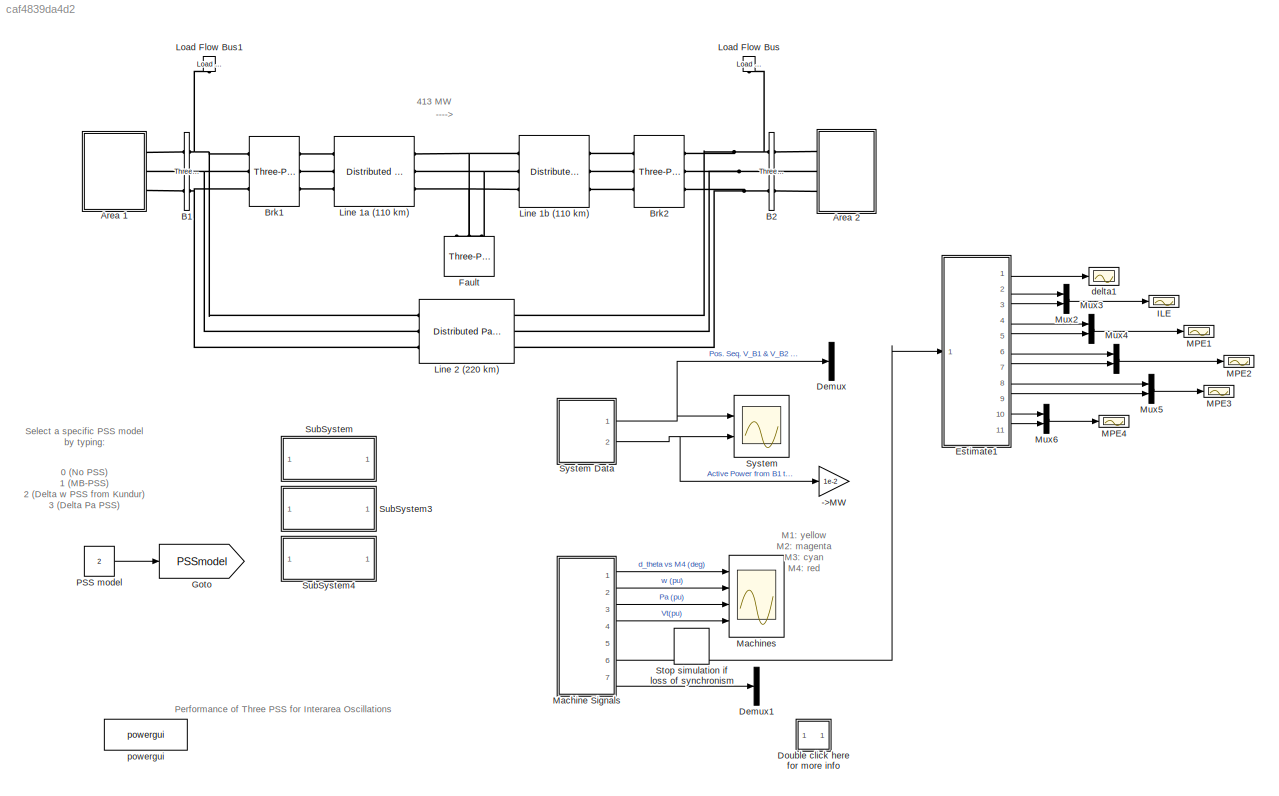
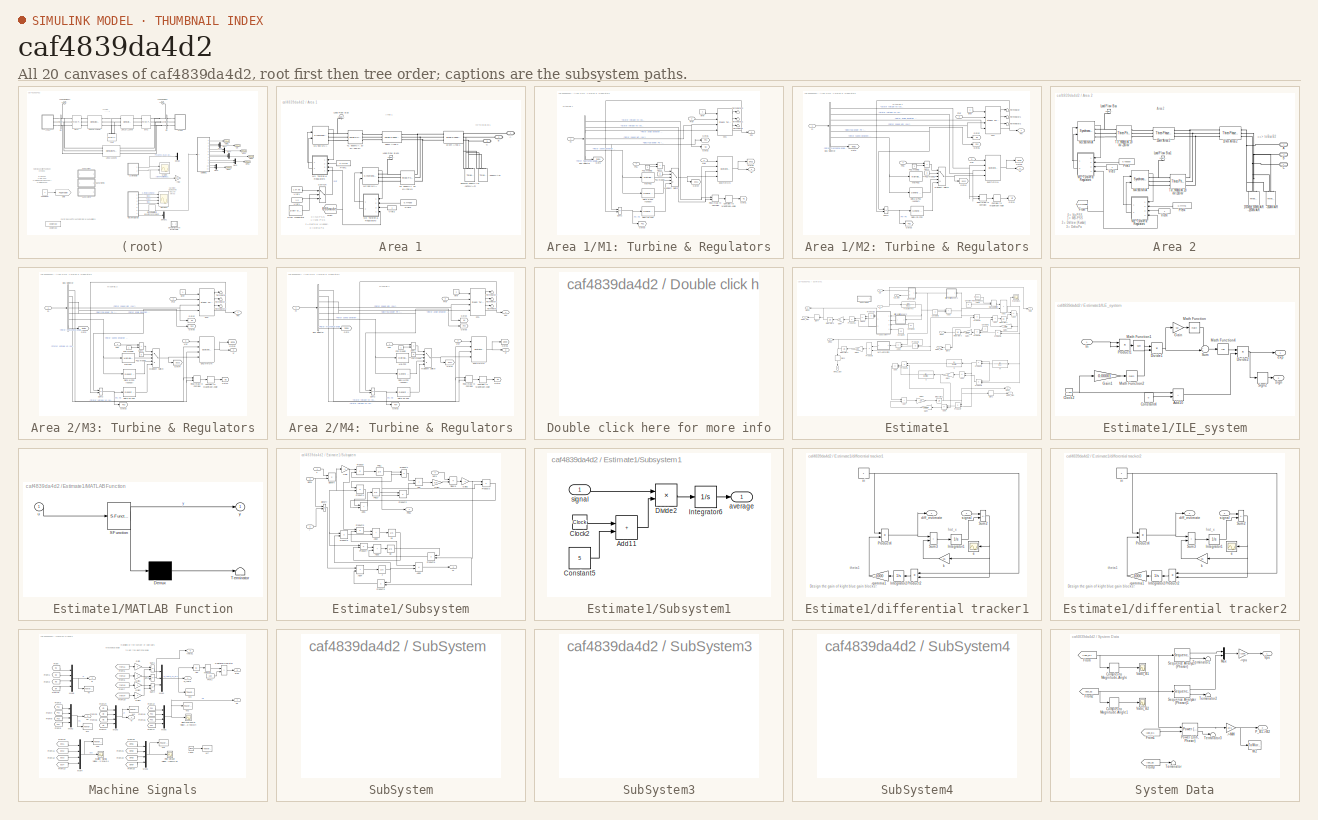
[diagram: thumbnail index - all 20 canvases of the model, root first then tree order]
MODEL slx_caf4839da4d2
KIND model
CONFIG AbsTol = auto
CONFIG EnableMultiTasking = on
CONFIG FixedStep = auto
CONFIG InitFcn = paraset
CONFIG MaxStep = 1/60
CONFIG MinStep = auto
CONFIG RelTol = 1e-3
CONFIG SampleTimeConstraint = Unconstrained
CONFIG SolverName = ode23tb
CONFIG StartTime = 0.0
CONFIG StopTime = 25
BLOCK [Reference]  Brk2  REF=spsThreePhaseBreakerLib/Three-Phase Breaker
  AttributesFormatString = \n
  Ports = [0, 0, 0, 0, 0, 3, 3]
  SourceBlock = spsThreePhaseBreakerLib/Three-Phase Breaker
  SourceProductBaseCode = PS
  SourceType = Three-Phase Breaker
BLOCK [Gain] ->MW
  Gain = 1e-2
  OutDataTypeStr = Inherit: Same as input
  ParamDataTypeStr = Inherit: Same as input
  SaturateOnIntegerOverflow = on
BLOCK [SubSystem] Area 1
  Ports = [0, 0, 0, 0, 0, 0, 3]
  RequestExecContextInheritance = off
BLOCK [PMIOPort] Area 1/ A
  Side = Right
BLOCK [PMIOPort] Area 1/ B
  Port = 2
  Side = Right
BLOCK [PMIOPort] Area 1/ C
  Port = 3
  Side = Right
BLOCK [Reference] Area 1/-200MVAR  REF=spsThreePhaseParallelRLCLoadLib/Three-Phase
Parallel RLC Load
  AttributesFormatString = \n
  NameLocation = right
  Ports = [0, 0, 0, 0, 0, 3]
  SourceBlock = spsThreePhaseParallelRLCLoadLib/Three-Phase\nParallel RLC Load
  SourceProductBaseCode = PS
  SourceType = Three-Phase Parallel RLC Load
BLOCK [Reference] Area 1/10 km Area 1  REF=spsThreePhasePISectionLineLib/Three-Phase
PI Section Line
  AttributesFormatString = \n
  Ports = [0, 0, 0, 0, 0, 3, 3]
  SourceBlock = spsThreePhasePISectionLineLib/Three-Phase\nPI Section Line
  SourceProductBaseCode = PS
  SourceType = Three-Phase PI Section Line
BLOCK [Reference] Area 1/25km Area 1  REF=spsThreePhasePISectionLineLib/Three-Phase
PI Section Line
  AttributesFormatString = \n
  Ports = [0, 0, 0, 0, 0, 3, 3]
  SourceBlock = spsThreePhasePISectionLineLib/Three-Phase\nPI Section Line
  SourceProductBaseCode = PS
  SourceType = Three-Phase PI Section Line
BLOCK [Reference] Area 1/967MW 100MVAR -187MVAR  REF=spsThreePhaseParallelRLCLoadLib/Three-Phase
Parallel RLC Load
  AttributesFormatString = \n
  NameLocation = left
  Ports = [0, 0, 0, 0, 0, 3]
  SourceBlock = spsThreePhaseParallelRLCLoadLib/Three-Phase\nParallel RLC Load
  SourceProductBaseCode = PS
  SourceType = Three-Phase Parallel RLC Load
BLOCK [From] Area 1/From
  CloseFcn = tagdialog Close
  GotoTag = PSSmodel
  TagVisibility = global
BLOCK [Reference] Area 1/Load Flow Bus  REF=spsLoadFlowBusLib/Load Flow Bus
  AttributesFormatString = %<ID>\n%<Vbase>V\n%<VLF>pu\n%<angleLF>deg.
  NameLocation = right
  Ports = [0, 0, 0, 0, 0, 1]
  SourceBlock = spsLoadFlowBusLib/Load Flow Bus
  SourceProductBaseCode = PS
  SourceType = Load Flow Bus
BLOCK [Reference] Area 1/Load Flow Bus1  REF=spsLoadFlowBusLib/Load Flow Bus
  AttributesFormatString = %<ID>\n%<Vbase>V\n%<VLF>pu\n%<angleLF>deg.
  NameLocation = right
  Ports = [0, 0, 0, 0, 0, 1]
  SourceBlock = spsLoadFlowBusLib/Load Flow Bus
  SourceProductBaseCode = PS
  SourceType = Load Flow Bus
BLOCK [Reference] Area 1/M1 900 MVA  REF=spsSynchronousMachinepuStandardLib/Synchronous Machine
pu Standard
  AttributesFormatString = \n\n
  Ports = [2, 1, 0, 0, 0, 0, 3]
  SourceBlock = spsSynchronousMachinepuStandardLib/Synchronous Machine\npu Standard
  SourceProductBaseCode = PS
  SourceType = Synchronous Machine
BLOCK [SubSystem] Area 1/M1: Turbine & Regulators
  Ports = [4, 2]
  RequestExecContextInheritance = off
BLOCK [BusSelector] Area 1/M1: Turbine & Regulators/Bus Selector
  OutputSignals = dq0 components.Stator voltage  vd (pu),dq0 components.Stator voltage  vq (pu),Mechanical.Rotor angle deviation  d_theta (rad),Mechanical.Rotor speed  wm  (pu),Mechanical.Electrical power  Pe (pu),Mechanical.Rotor speed deviation  dw (pu),Mechanical.Rotor mechanical angle  theta (deg)  <repeated x4 — deduplicated; at blocks: Bus Selector>
  Ports = [1, 7]
BLOCK [ComplexToMagnitudeAngle] Area 1/M1: Turbine & Regulators/Complex to Magnitude-Angle
  Output = Magnitude
  Ports = [1, 1]
BLOCK [Reference] Area 1/M1: Turbine & Regulators/Delta Pa PSS   REF=spsGenericPowerSystemStabilizerLib/Generic
Power System Stabilizer
  Ports = [1, 1]
  SourceBlock = spsGenericPowerSystemStabilizerLib/Generic\nPower System Stabilizer
  SourceProductBaseCode = PS
  SourceType = Generic Power System Stabilizer
BLOCK [Reference] Area 1/M1: Turbine & Regulators/Delta w PSS (Kundur)   REF=spsGenericPowerSystemStabilizerLib/Generic
Power System Stabilizer
  Ports = [1, 1]
  SourceBlock = spsGenericPowerSystemStabilizerLib/Generic\nPower System Stabilizer
  SourceProductBaseCode = PS
  SourceType = Generic Power System Stabilizer
BLOCK [Reference] Area 1/M1: Turbine & Regulators/EXCITATION  REF=spsExcitationSystemLib/Excitation System
  Ports = [4, 1]
  SourceBlock = spsExcitationSystemLib/Excitation System
  SourceProductBaseCode = PS
  SourceType = Excitation System
BLOCK [Goto] Area 1/M1: Turbine & Regulators/Goto
  GotoTag = theta1
  TagVisibility = global
BLOCK [Goto] Area 1/M1: Turbine & Regulators/Goto1
  GotoTag = Vt1
  TagVisibility = global
BLOCK [Goto] Area 1/M1: Turbine & Regulators/Goto2
  GotoTag = w1
  TagVisibility = global
BLOCK [Goto] Area 1/M1: Turbine & Regulators/Goto3
  GotoTag = Pa1
  TagVisibility = global
BLOCK [Goto] Area 1/M1: Turbine & Regulators/Goto4
  GotoTag = pss1
  TagVisibility = global
BLOCK [Goto] Area 1/M1: Turbine & Regulators/Goto5
  GotoTag = EFD1
  TagVisibility = global
BLOCK [Goto] Area 1/M1: Turbine & Regulators/Goto6
  GotoTag = Pe1
  TagVisibility = global
BLOCK [Reference] Area 1/M1: Turbine & Regulators/MB-PSS   REF=spsMultiBandPowerSystemStabilizerLib/Multi-Band
Power System Stabilizer
  Ports = [1, 1]
  SourceBlock = spsMultiBandPowerSystemStabilizerLib/Multi-Band\nPower System Stabilizer
  SourceProductBaseCode = PS
  SourceType = Multi-Band Power System Stabilizer
BLOCK [MultiPortSwitch] Area 1/M1: Turbine & Regulators/Multiport Switch
  Inputs = 4
  Ports = [5, 1]
  SaturateOnIntegerOverflow = off
BLOCK [Inport] Area 1/M1: Turbine & Regulators/PSS
  Port = 4
BLOCK [Constant] Area 1/M1: Turbine & Regulators/PSS model1
  Value = 0
BLOCK [Constant] Area 1/M1: Turbine & Regulators/PSS model2
BLOCK [Outport] Area 1/M1: Turbine & Regulators/Pm
  InitialOutput = 0
  VectorParamsAs1DForOutWhenUnconnected = off
BLOCK [Inport] Area 1/M1: Turbine & Regulators/Pref
  Port = 2
BLOCK [RealImagToComplex] Area 1/M1: Turbine & Regulators/Real-Imag to Complex
  Ports = [2, 1]
BLOCK [Reference] Area 1/M1: Turbine & Regulators/STG  REF=spsSteamTurbineandGovernorLib/Steam Turbine
and Governor
  Ports = [4, 4]
  SourceBlock = spsSteamTurbineandGovernorLib/Steam Turbine\nand Governor
  SourceProductBaseCode = PS
  SourceType = Steam Turbine and Governor
BLOCK [Sum] Area 1/M1: Turbine & Regulators/Sum1
  IconShape = rectangular
  InputSameDT = on
  OutDataTypeStr = Inherit: Same as first input
  Ports = [2, 1]
  SaturateOnIntegerOverflow = on
BLOCK [Sum] Area 1/M1: Turbine & Regulators/Sum2
  IconShape = rectangular
  InputSameDT = on
  Inputs = -+
  OutDataTypeStr = Inherit: Same as first input
  Ports = [2, 1]
  SaturateOnIntegerOverflow = on
BLOCK [Terminator] Area 1/M1: Turbine & Regulators/Terminator
BLOCK [Terminator] Area 1/M1: Turbine & Regulators/Terminator1
BLOCK [Terminator] Area 1/M1: Turbine & Regulators/Terminator2
BLOCK [Outport] Area 1/M1: Turbine & Regulators/Vf
  InitialOutput = 0
  Port = 2
  VectorParamsAs1DForOutWhenUnconnected = off
BLOCK [Inport] Area 1/M1: Turbine & Regulators/Vref
  Port = 3
BLOCK [Inport] Area 1/M1: Turbine & Regulators/m
BLOCK [Constant] Area 1/M1: Turbine & Regulators/wref
  NameLocation = top
BLOCK [Reference] Area 1/M2 900 MVA  REF=spsSynchronousMachinepuStandardLib/Synchronous Machine
pu Standard
  AttributesFormatString = \n\n
  Ports = [2, 1, 0, 0, 0, 0, 3]
  SourceBlock = spsSynchronousMachinepuStandardLib/Synchronous Machine\npu Standard
  SourceProductBaseCode = PS
  SourceType = Synchronous Machine
BLOCK [SubSystem] Area 1/M2: Turbine & Regulators
  Ports = [4, 2]
  RequestExecContextInheritance = off
BLOCK [BusSelector] Area 1/M2: Turbine & Regulators/Bus Selector
  Ports = [1, 7]
BLOCK [ComplexToMagnitudeAngle] Area 1/M2: Turbine & Regulators/Complex to Magnitude-Angle
  Output = Magnitude
  Ports = [1, 1]
BLOCK [Reference] Area 1/M2: Turbine & Regulators/Delta Pa PSS   REF=spsGenericPowerSystemStabilizerLib/Generic
Power System Stabilizer
  Ports = [1, 1]
  SourceBlock = spsGenericPowerSystemStabilizerLib/Generic\nPower System Stabilizer
  SourceProductBaseCode = PS
  SourceType = Generic Power System Stabilizer
BLOCK [Reference] Area 1/M2: Turbine & Regulators/Delta w PSS (Kundur)   REF=spsGenericPowerSystemStabilizerLib/Generic
Power System Stabilizer
  Ports = [1, 1]
  SourceBlock = spsGenericPowerSystemStabilizerLib/Generic\nPower System Stabilizer
  SourceProductBaseCode = PS
  SourceType = Generic Power System Stabilizer
BLOCK [Reference] Area 1/M2: Turbine & Regulators/EXCITATION  REF=spsExcitationSystemLib/Excitation System
  Ports = [4, 1]
  SourceBlock = spsExcitationSystemLib/Excitation System
  SourceProductBaseCode = PS
  SourceType = Excitation System
BLOCK [Goto] Area 1/M2: Turbine & Regulators/Goto
  GotoTag = theta2
  TagVisibility = global
BLOCK [Goto] Area 1/M2: Turbine & Regulators/Goto1
  GotoTag = Vt2
  TagVisibility = global
BLOCK [Goto] Area 1/M2: Turbine & Regulators/Goto2
  GotoTag = w2
  TagVisibility = global
BLOCK [Goto] Area 1/M2: Turbine & Regulators/Goto3
  GotoTag = Pa2
  TagVisibility = global
BLOCK [Goto] Area 1/M2: Turbine & Regulators/Goto4
  GotoTag = pss2
  TagVisibility = global
BLOCK [Goto] Area 1/M2: Turbine & Regulators/Goto5
  GotoTag = EFD2
  TagVisibility = global
BLOCK [Goto] Area 1/M2: Turbine & Regulators/Goto6
  GotoTag = Pe2
  TagVisibility = global
BLOCK [Reference] Area 1/M2: Turbine & Regulators/MB-PSS   REF=spsMultiBandPowerSystemStabilizerLib/Multi-Band
Power System Stabilizer
  Ports = [1, 1]
  SourceBlock = spsMultiBandPowerSystemStabilizerLib/Multi-Band\nPower System Stabilizer
  SourceProductBaseCode = PS
  SourceType = Multi-Band Power System Stabilizer
BLOCK [MultiPortSwitch] Area 1/M2: Turbine & Regulators/Multiport Switch
  Inputs = 4
  Ports = [5, 1]
  SaturateOnIntegerOverflow = off
BLOCK [Inport] Area 1/M2: Turbine & Regulators/PSS
  Port = 4
BLOCK [Constant] Area 1/M2: Turbine & Regulators/PSS model1
  Value = 0
BLOCK [Constant] Area 1/M2: Turbine & Regulators/PSS model2
BLOCK [Outport] Area 1/M2: Turbine & Regulators/Pm
  InitialOutput = 0
  VectorParamsAs1DForOutWhenUnconnected = off
BLOCK [Inport] Area 1/M2: Turbine & Regulators/Pref
  Port = 2
BLOCK [RealImagToComplex] Area 1/M2: Turbine & Regulators/Real-Imag to Complex
  Ports = [2, 1]
BLOCK [Reference] Area 1/M2: Turbine & Regulators/STG  REF=spsSteamTurbineandGovernorLib/Steam Turbine
and Governor
  Ports = [4, 4]
  SourceBlock = spsSteamTurbineandGovernorLib/Steam Turbine\nand Governor
  SourceProductBaseCode = PS
  SourceType = Steam Turbine and Governor
BLOCK [Sum] Area 1/M2: Turbine & Regulators/Sum1
  IconShape = rectangular
  InputSameDT = on
  OutDataTypeStr = Inherit: Same as first input
  Ports = [2, 1]
  SaturateOnIntegerOverflow = on
BLOCK [Sum] Area 1/M2: Turbine & Regulators/Sum2
  IconShape = rectangular
  InputSameDT = on
  Inputs = -+
  OutDataTypeStr = Inherit: Same as first input
  Ports = [2, 1]
  SaturateOnIntegerOverflow = on
BLOCK [Terminator] Area 1/M2: Turbine & Regulators/Terminator
BLOCK [Terminator] Area 1/M2: Turbine & Regulators/Terminator1
BLOCK [Terminator] Area 1/M2: Turbine & Regulators/Terminator2
BLOCK [Outport] Area 1/M2: Turbine & Regulators/Vf
  InitialOutput = 0
  Port = 2
  VectorParamsAs1DForOutWhenUnconnected = off
BLOCK [Inport] Area 1/M2: Turbine & Regulators/Vref
  Port = 3
BLOCK [Inport] Area 1/M2: Turbine & Regulators/m
BLOCK [Constant] Area 1/M2: Turbine & Regulators/wref
  NameLocation = top
BLOCK [Constant] Area 1/Pref1
  Value = 0.777778
BLOCK [Constant] Area 1/Pref2
  Value = 0.777689
BLOCK [Reference] Area 1/Stair Generator  REF=spsStairGeneratorLib/Stair
Generator
  Ports = [0, 1]
  SourceBlock = spsStairGeneratorLib/Stair\nGenerator
  SourceProductBaseCode = PS
  SourceType = Stair Generator
BLOCK [Switch] Area 1/Switch
  SaturateOnIntegerOverflow = off
  Threshold = 1
BLOCK [Reference] Area 1/T1: 900MVA 20 kV-230 kV  REF=spsThreePhaseTransformerTwoWindingsLib/Three-Phase
Transformer
(Two Windings)
  AttributesFormatString = \n
  Ports = [0, 0, 0, 0, 0, 3, 3]
  SourceBlock = spsThreePhaseTransformerTwoWindingsLib/Three-Phase\nTransformer\n(Two Windings)
  SourceProductBaseCode = PS
  SourceType = Three-Phase Transformer (Two Windings)
BLOCK [Reference] Area 1/T2: 900MVA 20 kV//230 kV  REF=spsThreePhaseTransformerTwoWindingsLib/Three-Phase
Transformer
(Two Windings)
  AttributesFormatString = \n
  Ports = [0, 0, 0, 0, 0, 3, 3]
  SourceBlock = spsThreePhaseTransformerTwoWindingsLib/Three-Phase\nTransformer\n(Two Windings)
  SourceProductBaseCode = PS
  SourceType = Three-Phase Transformer (Two Windings)
BLOCK [Constant] Area 1/Vref1
  NameLocation = top
  Value = 1.0
BLOCK [Constant] Area 1/Vref1 
  Value = 1.0+.05
BLOCK [Constant] Area 1/Vref2
BLOCK [SubSystem] Area 2
  Ports = [0, 0, 0, 0, 0, 3]
  RequestExecContextInheritance = off
BLOCK [Reference] Area 2/-350MVAR  REF=spsThreePhaseParallelRLCLoadLib/Three-Phase
Parallel RLC Load
  AttributesFormatString = \n
  NameLocation = right
  Ports = [0, 0, 0, 0, 0, 3]
  SourceBlock = spsThreePhaseParallelRLCLoadLib/Three-Phase\nParallel RLC Load
  SourceProductBaseCode = PS
  SourceType = Three-Phase Parallel RLC Load
BLOCK [Reference] Area 2/10 km Area 2  REF=spsThreePhasePISectionLineLib/Three-Phase
PI Section Line
  AttributesFormatString = \n
  Ports = [0, 0, 0, 0, 0, 3, 3]
  SourceBlock = spsThreePhasePISectionLineLib/Three-Phase\nPI Section Line
  SourceProductBaseCode = PS
  SourceType = Three-Phase PI Section Line
BLOCK [Reference] Area 2/1767MW 100MVAR -187MVAR  REF=spsThreePhaseParallelRLCLoadLib/Three-Phase
Parallel RLC Load
  AttributesFormatString = \n
  NameLocation = left
  Ports = [0, 0, 0, 0, 0, 3]
  SourceBlock = spsThreePhaseParallelRLCLoadLib/Three-Phase\nParallel RLC Load
  SourceProductBaseCode = PS
  SourceType = Three-Phase Parallel RLC Load
BLOCK [Reference] Area 2/25km Area 2  REF=spsThreePhasePISectionLineLib/Three-Phase
PI Section Line
  AttributesFormatString = \n
  Ports = [0, 0, 0, 0, 0, 3, 3]
  SourceBlock = spsThreePhasePISectionLineLib/Three-Phase\nPI Section Line
  SourceProductBaseCode = PS
  SourceType = Three-Phase PI Section Line
BLOCK [PMIOPort] Area 2/A
  Side = Left
BLOCK [PMIOPort] Area 2/B
  Port = 2
  Side = Left
BLOCK [PMIOPort] Area 2/C
  Port = 3
  Side = Left
BLOCK [From] Area 2/From
  CloseFcn = tagdialog Close
  GotoTag = PSSmodel
  TagVisibility = global
BLOCK [Reference] Area 2/Load Flow Bus  REF=spsLoadFlowBusLib/Load Flow Bus
  AttributesFormatString = %<ID>\n%<Vbase>V\n%<VLF>pu\n%<angleLF>deg.
  NameLocation = right
  Ports = [0, 0, 0, 0, 0, 1]
  SourceBlock = spsLoadFlowBusLib/Load Flow Bus
  SourceProductBaseCode = PS
  SourceType = Load Flow Bus
BLOCK [Reference] Area 2/Load Flow Bus1  REF=spsLoadFlowBusLib/Load Flow Bus
  AttributesFormatString = %<ID>\n%<Vbase>V\n%<VLF>pu\n%<angleLF>deg.
  NameLocation = right
  Ports = [0, 0, 0, 0, 0, 1]
  SourceBlock = spsLoadFlowBusLib/Load Flow Bus
  SourceProductBaseCode = PS
  SourceType = Load Flow Bus
BLOCK [Reference] Area 2/M3 900 MVA  REF=spsSynchronousMachinepuStandardLib/Synchronous Machine
pu Standard
  AttributesFormatString = \n\n
  Ports = [2, 1, 0, 0, 0, 0, 3]
  SourceBlock = spsSynchronousMachinepuStandardLib/Synchronous Machine\npu Standard
  SourceProductBaseCode = PS
  SourceType = Synchronous Machine
BLOCK [SubSystem] Area 2/M3: Turbine & Regulators
  Ports = [4, 2]
  RequestExecContextInheritance = off
BLOCK [BusSelector] Area 2/M3: Turbine & Regulators/Bus Selector
  Ports = [1, 7]
BLOCK [ComplexToMagnitudeAngle] Area 2/M3: Turbine & Regulators/Complex to Magnitude-Angle
  Output = Magnitude
  Ports = [1, 1]
BLOCK [Reference] Area 2/M3: Turbine & Regulators/Delta Pa PSS   REF=spsGenericPowerSystemStabilizerLib/Generic
Power System Stabilizer
  Ports = [1, 1]
  SourceBlock = spsGenericPowerSystemStabilizerLib/Generic\nPower System Stabilizer
  SourceProductBaseCode = PS
  SourceType = Generic Power System Stabilizer
BLOCK [Reference] Area 2/M3: Turbine & Regulators/Delta w PSS (Kundur)   REF=spsGenericPowerSystemStabilizerLib/Generic
Power System Stabilizer
  Ports = [1, 1]
  SourceBlock = spsGenericPowerSystemStabilizerLib/Generic\nPower System Stabilizer
  SourceProductBaseCode = PS
  SourceType = Generic Power System Stabilizer
BLOCK [Reference] Area 2/M3: Turbine & Regulators/EXCITATION  REF=spsExcitationSystemLib/Excitation System
  Ports = [4, 1]
  SourceBlock = spsExcitationSystemLib/Excitation System
  SourceProductBaseCode = PS
  SourceType = Excitation System
BLOCK [Goto] Area 2/M3: Turbine & Regulators/Goto
  GotoTag = theta3
  TagVisibility = global
BLOCK [Goto] Area 2/M3: Turbine & Regulators/Goto1
  GotoTag = Vt3
  TagVisibility = global
BLOCK [Goto] Area 2/M3: Turbine & Regulators/Goto2
  GotoTag = w3
  TagVisibility = global
BLOCK [Goto] Area 2/M3: Turbine & Regulators/Goto3
  GotoTag = Pa3
  TagVisibility = global
BLOCK [Goto] Area 2/M3: Turbine & Regulators/Goto4
  GotoTag = pss3
  TagVisibility = global
BLOCK [Goto] Area 2/M3: Turbine & Regulators/Goto5
  GotoTag = EFD3
  TagVisibility = global
BLOCK [Goto] Area 2/M3: Turbine & Regulators/Goto6
  GotoTag = Pe3
  TagVisibility = global
BLOCK [Reference] Area 2/M3: Turbine & Regulators/MB-PSS   REF=spsMultiBandPowerSystemStabilizerLib/Multi-Band
Power System Stabilizer
  Ports = [1, 1]
  SourceBlock = spsMultiBandPowerSystemStabilizerLib/Multi-Band\nPower System Stabilizer
  SourceProductBaseCode = PS
  SourceType = Multi-Band Power System Stabilizer
BLOCK [MultiPortSwitch] Area 2/M3: Turbine & Regulators/Multiport Switch
  Inputs = 4
  Ports = [5, 1]
  SaturateOnIntegerOverflow = off
BLOCK [Inport] Area 2/M3: Turbine & Regulators/PSS
  Port = 4
BLOCK [Constant] Area 2/M3: Turbine & Regulators/PSS model1
  Value = 0
BLOCK [Constant] Area 2/M3: Turbine & Regulators/PSS model2
BLOCK [Outport] Area 2/M3: Turbine & Regulators/Pm
  InitialOutput = 0
  VectorParamsAs1DForOutWhenUnconnected = off
BLOCK [Inport] Area 2/M3: Turbine & Regulators/Pref
  Port = 2
BLOCK [RealImagToComplex] Area 2/M3: Turbine & Regulators/Real-Imag to Complex
  Ports = [2, 1]
BLOCK [Reference] Area 2/M3: Turbine & Regulators/STG  REF=spsSteamTurbineandGovernorLib/Steam Turbine
and Governor
  Ports = [4, 4]
  SourceBlock = spsSteamTurbineandGovernorLib/Steam Turbine\nand Governor
  SourceProductBaseCode = PS
  SourceType = Steam Turbine and Governor
BLOCK [Sum] Area 2/M3: Turbine & Regulators/Sum1
  IconShape = rectangular
  InputSameDT = on
  OutDataTypeStr = Inherit: Same as first input
  Ports = [2, 1]
  SaturateOnIntegerOverflow = on
BLOCK [Sum] Area 2/M3: Turbine & Regulators/Sum2
  IconShape = rectangular
  InputSameDT = on
  Inputs = -+
  OutDataTypeStr = Inherit: Same as first input
  Ports = [2, 1]
  SaturateOnIntegerOverflow = on
BLOCK [Terminator] Area 2/M3: Turbine & Regulators/Terminator
BLOCK [Terminator] Area 2/M3: Turbine & Regulators/Terminator1
BLOCK [Terminator] Area 2/M3: Turbine & Regulators/Terminator2
BLOCK [Outport] Area 2/M3: Turbine & Regulators/Vf
  InitialOutput = 0
  Port = 2
  VectorParamsAs1DForOutWhenUnconnected = off
BLOCK [Inport] Area 2/M3: Turbine & Regulators/Vref
  Port = 3
BLOCK [Inport] Area 2/M3: Turbine & Regulators/m
BLOCK [Constant] Area 2/M3: Turbine & Regulators/wref
  NameLocation = top
BLOCK [Reference] Area 2/M4 900 MVA  REF=spsSynchronousMachinepuStandardLib/Synchronous Machine
pu Standard
  AttributesFormatString = \n\n
  Ports = [2, 1, 0, 0, 0, 0, 3]
  SourceBlock = spsSynchronousMachinepuStandardLib/Synchronous Machine\npu Standard
  SourceProductBaseCode = PS
  SourceType = Synchronous Machine
BLOCK [SubSystem] Area 2/M4: Turbine & Regulators
  Ports = [4, 2]
  RequestExecContextInheritance = off
BLOCK [BusSelector] Area 2/M4: Turbine & Regulators/Bus Selector
  Ports = [1, 7]
BLOCK [ComplexToMagnitudeAngle] Area 2/M4: Turbine & Regulators/Complex to Magnitude-Angle
  Output = Magnitude
  Ports = [1, 1]
BLOCK [Reference] Area 2/M4: Turbine & Regulators/Delta Pa PSS   REF=spsGenericPowerSystemStabilizerLib/Generic
Power System Stabilizer
  Ports = [1, 1]
  SourceBlock = spsGenericPowerSystemStabilizerLib/Generic\nPower System Stabilizer
  SourceProductBaseCode = PS
  SourceType = Generic Power System Stabilizer
BLOCK [Reference] Area 2/M4: Turbine & Regulators/Delta w PSS (Kundur)   REF=spsGenericPowerSystemStabilizerLib/Generic
Power System Stabilizer
  Ports = [1, 1]
  SourceBlock = spsGenericPowerSystemStabilizerLib/Generic\nPower System Stabilizer
  SourceProductBaseCode = PS
  SourceType = Generic Power System Stabilizer
BLOCK [Reference] Area 2/M4: Turbine & Regulators/EXCITATION  REF=spsExcitationSystemLib/Excitation System
  Ports = [4, 1]
  SourceBlock = spsExcitationSystemLib/Excitation System
  SourceProductBaseCode = PS
  SourceType = Excitation System
BLOCK [Goto] Area 2/M4: Turbine & Regulators/Goto
  GotoTag = theta4
  TagVisibility = global
BLOCK [Goto] Area 2/M4: Turbine & Regulators/Goto1
  GotoTag = Vt4
  TagVisibility = global
BLOCK [Goto] Area 2/M4: Turbine & Regulators/Goto2
  GotoTag = w4
  TagVisibility = global
BLOCK [Goto] Area 2/M4: Turbine & Regulators/Goto3
  GotoTag = Pa4
  TagVisibility = global
BLOCK [Goto] Area 2/M4: Turbine & Regulators/Goto4
  GotoTag = pss4
  TagVisibility = global
BLOCK [Goto] Area 2/M4: Turbine & Regulators/Goto5
  GotoTag = EFD4
  TagVisibility = global
BLOCK [Goto] Area 2/M4: Turbine & Regulators/Goto6
  GotoTag = Pe4
  TagVisibility = global
BLOCK [Reference] Area 2/M4: Turbine & Regulators/MB-PSS   REF=spsMultiBandPowerSystemStabilizerLib/Multi-Band
Power System Stabilizer
  Ports = [1, 1]
  SourceBlock = spsMultiBandPowerSystemStabilizerLib/Multi-Band\nPower System Stabilizer
  SourceProductBaseCode = PS
  SourceType = Multi-Band Power System Stabilizer
BLOCK [MultiPortSwitch] Area 2/M4: Turbine & Regulators/Multiport Switch
  Inputs = 4
  Ports = [5, 1]
  SaturateOnIntegerOverflow = off
BLOCK [Inport] Area 2/M4: Turbine & Regulators/PSS
  Port = 4
BLOCK [Constant] Area 2/M4: Turbine & Regulators/PSS model1
  Value = 0
BLOCK [Constant] Area 2/M4: Turbine & Regulators/PSS model2
BLOCK [Outport] Area 2/M4: Turbine & Regulators/Pm
  InitialOutput = 0
  VectorParamsAs1DForOutWhenUnconnected = off
BLOCK [Inport] Area 2/M4: Turbine & Regulators/Pref
  Port = 2
BLOCK [RealImagToComplex] Area 2/M4: Turbine & Regulators/Real-Imag to Complex
  Ports = [2, 1]
BLOCK [Reference] Area 2/M4: Turbine & Regulators/STG  REF=spsSteamTurbineandGovernorLib/Steam Turbine
and Governor
  Ports = [4, 4]
  SourceBlock = spsSteamTurbineandGovernorLib/Steam Turbine\nand Governor
  SourceProductBaseCode = PS
  SourceType = Steam Turbine and Governor
BLOCK [Sum] Area 2/M4: Turbine & Regulators/Sum1
  IconShape = rectangular
  InputSameDT = on
  OutDataTypeStr = Inherit: Same as first input
  Ports = [2, 1]
  SaturateOnIntegerOverflow = on
BLOCK [Sum] Area 2/M4: Turbine & Regulators/Sum2
  IconShape = rectangular
  InputSameDT = on
  Inputs = -+
  OutDataTypeStr = Inherit: Same as first input
  Ports = [2, 1]
  SaturateOnIntegerOverflow = on
BLOCK [Terminator] Area 2/M4: Turbine & Regulators/Terminator
BLOCK [Terminator] Area 2/M4: Turbine & Regulators/Terminator1
BLOCK [Terminator] Area 2/M4: Turbine & Regulators/Terminator2
BLOCK [Outport] Area 2/M4: Turbine & Regulators/Vf
  InitialOutput = 0
  Port = 2
  VectorParamsAs1DForOutWhenUnconnected = off
BLOCK [Inport] Area 2/M4: Turbine & Regulators/Vref
  Port = 3
BLOCK [Inport] Area 2/M4: Turbine & Regulators/m
BLOCK [Constant] Area 2/M4: Turbine & Regulators/wref
  NameLocation = top
BLOCK [Constant] Area 2/Pref3
  Value = 0.798889
BLOCK [Constant] Area 2/Pref4
  Value = 0.777778
BLOCK [Reference] Area 2/T3: 900MVA 20 kV-230 kV  REF=spsThreePhaseTransformerTwoWindingsLib/Three-Phase
Transformer
(Two Windings)
  AttributesFormatString = \n
  Ports = [0, 0, 0, 0, 0, 3, 3]
  SourceBlock = spsThreePhaseTransformerTwoWindingsLib/Three-Phase\nTransformer\n(Two Windings)
  SourceProductBaseCode = PS
  SourceType = Three-Phase Transformer (Two Windings)
BLOCK [Reference] Area 2/T4: 900MVA 20 kV//230 kV  REF=spsThreePhaseTransformerTwoWindingsLib/Three-Phase
Transformer
(Two Windings)
  AttributesFormatString = \n
  Ports = [0, 0, 0, 0, 0, 3, 3]
  SourceBlock = spsThreePhaseTransformerTwoWindingsLib/Three-Phase\nTransformer\n(Two Windings)
  SourceProductBaseCode = PS
  SourceType = Three-Phase Transformer (Two Windings)
BLOCK [Constant] Area 2/Vref3
BLOCK [Constant] Area 2/Vref4
BLOCK [Reference] B1  REF=spsThreePhaseVIMeasurementLib/Three-Phase
V-I Measurement
  Ports = [0, 0, 0, 0, 0, 3, 3]
  SourceBlock = spsThreePhaseVIMeasurementLib/Three-Phase\nV-I Measurement
  SourceProductBaseCode = PS
  SourceType = Three-Phase VI Measurement
BLOCK [Reference] B2  REF=spsThreePhaseVIMeasurementLib/Three-Phase
V-I Measurement
  Ports = [0, 0, 0, 0, 0, 3, 3]
  SourceBlock = spsThreePhaseVIMeasurementLib/Three-Phase\nV-I Measurement
  SourceProductBaseCode = PS
  SourceType = Three-Phase VI Measurement
BLOCK [Reference] Brk1  REF=spsThreePhaseBreakerLib/Three-Phase Breaker
  AttributesFormatString = \n
  Ports = [0, 0, 0, 0, 0, 3, 3]
  SourceBlock = spsThreePhaseBreakerLib/Three-Phase Breaker
  SourceProductBaseCode = PS
  SourceType = Three-Phase Breaker
BLOCK [Demux] Demux
  Outputs = 2
  Ports = [1, 2]
BLOCK [Demux] Demux1
  Ports = [1, 4]
BLOCK [SubSystem] Double click here for more info
  OpenFcn = showdemo(bdroot(gcb))
  Ports = []
  RequestExecContextInheritance = off
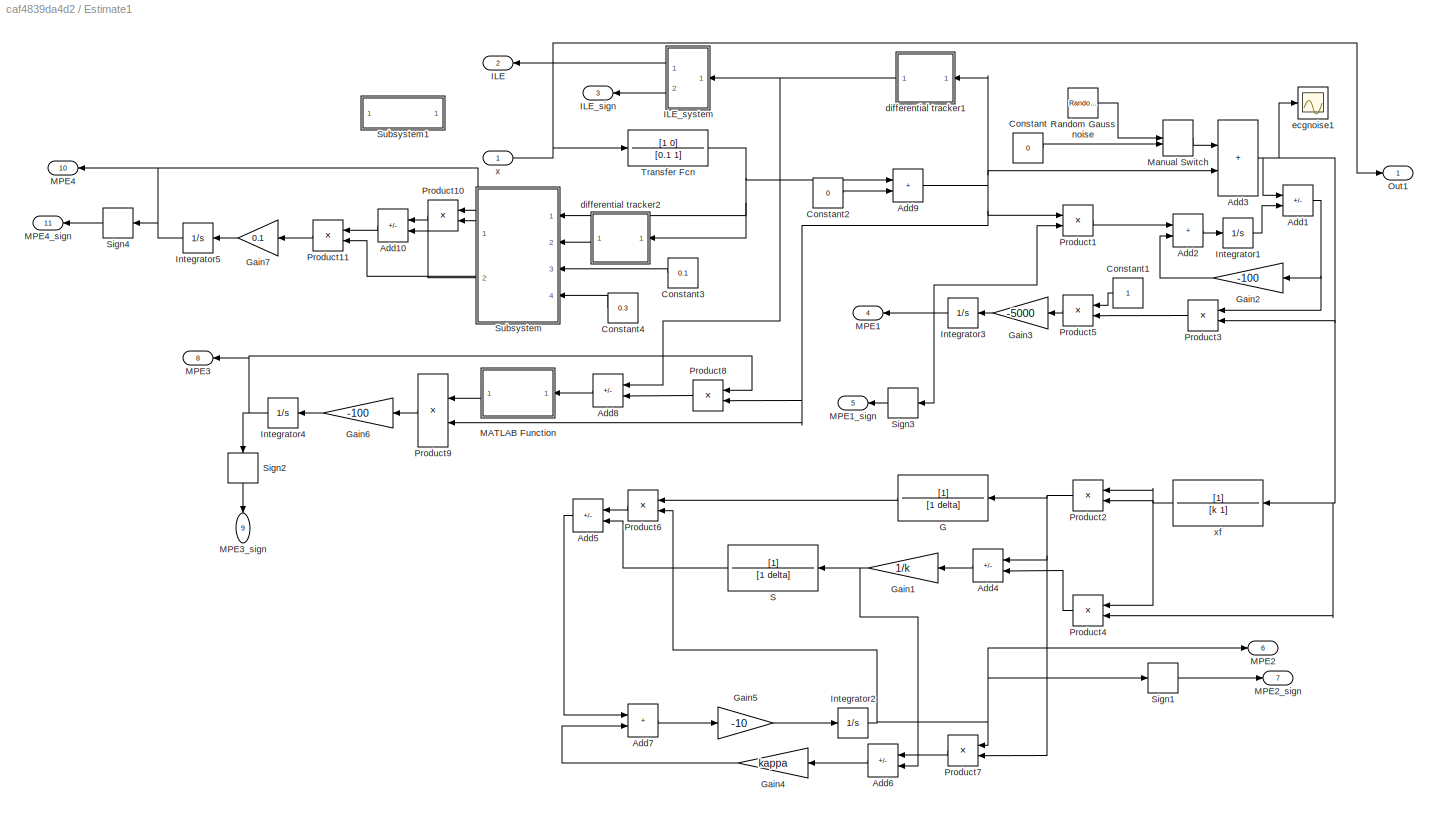
BLOCK [SubSystem] Estimate1
  Ports = [1, 11]
  RequestExecContextInheritance = off
BLOCK [Sum] Estimate1/Add1
  IconShape = rectangular
  Inputs = -+
  Ports = [2, 1]
BLOCK [Sum] Estimate1/Add10
  IconShape = rectangular
  Inputs = -+
  NameLocation = top
  Ports = [2, 1]
BLOCK [Sum] Estimate1/Add2
  IconShape = rectangular
  Ports = [2, 1]
BLOCK [Sum] Estimate1/Add3
  IconShape = rectangular
  Ports = [2, 1]
BLOCK [Sum] Estimate1/Add4
  IconShape = rectangular
  Inputs = -+
  NameLocation = top
  Ports = [2, 1]
BLOCK [Sum] Estimate1/Add5
  IconShape = rectangular
  Inputs = +-
  NameLocation = top
  Ports = [2, 1]
BLOCK [Sum] Estimate1/Add6
  IconShape = rectangular
  Inputs = +-
  NameLocation = top
  Ports = [2, 1]
BLOCK [Sum] Estimate1/Add7
  IconShape = rectangular
  Ports = [2, 1]
BLOCK [Sum] Estimate1/Add8
  IconShape = rectangular
  Inputs = -+
  NameLocation = top
  Ports = [2, 1]
BLOCK [Sum] Estimate1/Add9
  IconShape = rectangular
  Ports = [2, 1]
BLOCK [Constant] Estimate1/Constant
  Value = 0
BLOCK [Constant] Estimate1/Constant1
  NameLocation = top
BLOCK [Constant] Estimate1/Constant2
  Value = 0
BLOCK [Constant] Estimate1/Constant3
  NameLocation = top
  Value = 0.1
BLOCK [Constant] Estimate1/Constant4
  NameLocation = top
  Value = 0.3
BLOCK [TransferFcn] Estimate1/G
  Denominator = [1 delta]
  NameLocation = top
BLOCK [Gain] Estimate1/Gain1
  Gain = 1/k
BLOCK [Gain] Estimate1/Gain2
  Gain = -100
BLOCK [Gain] Estimate1/Gain3
  Gain = -5000
BLOCK [Gain] Estimate1/Gain4
  Gain = kappa
BLOCK [Gain] Estimate1/Gain5
  Gain = -10
  NameLocation = top
BLOCK [Gain] Estimate1/Gain6
  Gain = -100
BLOCK [Gain] Estimate1/Gain7
  Gain = 0.1
BLOCK [Outport] Estimate1/ILE
  NameLocation = top
  Port = 2
  VectorParamsAs1DForOutWhenUnconnected = off
BLOCK [Outport] Estimate1/ILE_sign
  Port = 3
  VectorParamsAs1DForOutWhenUnconnected = off
BLOCK [SubSystem] Estimate1/ILE_system
  Ports = [1, 2]
  RequestExecContextInheritance = off
BLOCK [Sum] Estimate1/ILE_system/Add10
  IconShape = rectangular
  Ports = [2, 1]
BLOCK [Clock] Estimate1/ILE_system/Clock2
BLOCK [Constant] Estimate1/ILE_system/Constant4
  Value = 0
BLOCK [Product] Estimate1/ILE_system/Divide1
  Inputs = */
  Ports = [2, 1]
BLOCK [Product] Estimate1/ILE_system/Divide2
  Inputs = */
  Ports = [2, 1]
BLOCK [Gain] Estimate1/ILE_system/Gain
  Gain = -50
BLOCK [Gain] Estimate1/ILE_system/Gain1
  Gain = 0.00001
BLOCK [Inport] Estimate1/ILE_system/In
BLOCK [Math] Estimate1/ILE_system/Math Function
  Ports = [1, 1]
  SignedPower = on
BLOCK [Math] Estimate1/ILE_system/Math Function1
  Operator = sqrt
  Ports = [1, 1]
  SignedPower = on
BLOCK [Math] Estimate1/ILE_system/Math Function2
  Ports = [1, 1]
  SignedPower = on
BLOCK [Math] Estimate1/ILE_system/Math Function4
  Operator = log
  Ports = [1, 1]
  SignedPower = on
BLOCK [Product] Estimate1/ILE_system/Product1
  Ports = [2, 1]
  RndMeth = Zero
BLOCK [Signum] Estimate1/ILE_system/Sign2
BLOCK [Sum] Estimate1/ILE_system/Sum
  Inputs = ++|
  Ports = [2, 1]
BLOCK [Outport] Estimate1/ILE_system/exp
  VectorParamsAs1DForOutWhenUnconnected = off
BLOCK [Outport] Estimate1/ILE_system/sign
  Port = 2
  VectorParamsAs1DForOutWhenUnconnected = off
BLOCK [Integrator] Estimate1/Integrator1
  Ports = [1, 1]
BLOCK [Integrator] Estimate1/Integrator2
  NameLocation = top
  Ports = [1, 1]
BLOCK [Integrator] Estimate1/Integrator3
  Ports = [1, 1]
BLOCK [Integrator] Estimate1/Integrator4
  Ports = [1, 1]
BLOCK [Integrator] Estimate1/Integrator5
  Ports = [1, 1]
BLOCK [SubSystem] Estimate1/MATLAB Function
  ErrorFcn = Stateflow.Translate.translate
  NameLocation = top
  PermitHierarchicalResolution = ExplicitOnly
  Ports = [1, 1]
  RequestExecContextInheritance = off
  SFBlockType = MATLAB Function
  TreatAsAtomicUnit = on
BLOCK [Demux] Estimate1/MATLAB Function/ Demux 
  Outputs = 1
  Ports = [1, 1]
BLOCK [S-Function] Estimate1/MATLAB Function/ SFunction 
  EnableBusSupport = on
  FunctionName = sf_sfun
  PortCounts = [1 2]
  Ports = [1, 2]
  SFcnIsStateOwnerBlock = off
  SFunctionDeploymentMode = off
  Tag = Stateflow S-Function 2
BLOCK [Terminator] Estimate1/MATLAB Function/ Terminator 
BLOCK [Inport] Estimate1/MATLAB Function/u
BLOCK [Outport] Estimate1/MATLAB Function/y
BLOCK [Outport] Estimate1/MPE1
  Port = 4
  VectorParamsAs1DForOutWhenUnconnected = off
BLOCK [Outport] Estimate1/MPE1_sign
  Port = 5
  VectorParamsAs1DForOutWhenUnconnected = off
BLOCK [Outport] Estimate1/MPE2
  NameLocation = top
  Port = 6
  VectorParamsAs1DForOutWhenUnconnected = off
BLOCK [Outport] Estimate1/MPE2_sign
  NameLocation = top
  Port = 7
  VectorParamsAs1DForOutWhenUnconnected = off
BLOCK [Outport] Estimate1/MPE3
  Port = 8
  VectorParamsAs1DForOutWhenUnconnected = off
BLOCK [Outport] Estimate1/MPE3_sign
  NameLocation = right
  Port = 9
  VectorParamsAs1DForOutWhenUnconnected = off
BLOCK [Outport] Estimate1/MPE4
  Port = 10
  VectorParamsAs1DForOutWhenUnconnected = off
BLOCK [Outport] Estimate1/MPE4_sign
  Port = 11
  VectorParamsAs1DForOutWhenUnconnected = off
BLOCK [ManualSwitch] Estimate1/Manual Switch
  CurrentSetting = 0
BLOCK [Outport] Estimate1/Out1
  VectorParamsAs1DForOutWhenUnconnected = off
BLOCK [Product] Estimate1/Product1
  Ports = [2, 1]
  RndMeth = Zero
BLOCK [Product] Estimate1/Product10
  NameLocation = top
  Ports = [2, 1]
  RndMeth = Zero
BLOCK [Product] Estimate1/Product11
  NameLocation = top
  Ports = [2, 1]
  RndMeth = Zero
BLOCK [Product] Estimate1/Product2
  NameLocation = top
  Ports = [2, 1]
  RndMeth = Zero
BLOCK [Product] Estimate1/Product3
  Ports = [2, 1]
  RndMeth = Zero
BLOCK [Product] Estimate1/Product4
  NameLocation = top
  Ports = [2, 1]
  RndMeth = Zero
BLOCK [Product] Estimate1/Product5
  Ports = [2, 1]
  RndMeth = Zero
BLOCK [Product] Estimate1/Product6
  NameLocation = top
  Ports = [2, 1]
  RndMeth = Zero
BLOCK [Product] Estimate1/Product7
  NameLocation = top
  Ports = [2, 1]
  RndMeth = Zero
BLOCK [Product] Estimate1/Product8
  NameLocation = top
  Ports = [2, 1]
  RndMeth = Zero
BLOCK [Product] Estimate1/Product9
  NameLocation = top
  Ports = [2, 1]
  RndMeth = Zero
BLOCK [RandomNumber] Estimate1/Random Gauss noise
  SampleTime = 0
  Variance = 0.0001
BLOCK [TransferFcn] Estimate1/S
  Denominator = [1 delta]
  NameLocation = top
BLOCK [Signum] Estimate1/Sign1
BLOCK [Signum] Estimate1/Sign2
  NameLocation = left
BLOCK [Signum] Estimate1/Sign3
  NameLocation = top
BLOCK [Signum] Estimate1/Sign4
  NameLocation = top
BLOCK [SubSystem] Estimate1/Subsystem
  NameLocation = top
  Ports = [4, 2]
  RequestExecContextInheritance = off
BLOCK [Sum] Estimate1/Subsystem/Add
  IconShape = rectangular
  Ports = [2, 1]
BLOCK [Sum] Estimate1/Subsystem/Add1
  IconShape = rectangular
  Ports = [2, 1]
BLOCK [Sum] Estimate1/Subsystem/Add2
  IconShape = rectangular
  Ports = [2, 1]
BLOCK [Sum] Estimate1/Subsystem/Add3
  IconShape = rectangular
  Ports = [2, 1]
BLOCK [Sum] Estimate1/Subsystem/Add4
  IconShape = rectangular
  Ports = [2, 1]
BLOCK [Sum] Estimate1/Subsystem/Add5
  IconShape = rectangular
  Inputs = -+
  Ports = [2, 1]
BLOCK [Gain] Estimate1/Subsystem/Gain
  Gain = -1
BLOCK [Gain] Estimate1/Subsystem/Gain1
  Gain = 0.5
BLOCK [Gain] Estimate1/Subsystem/Gain2
  Gain = -1
BLOCK [Integrator] Estimate1/Subsystem/Phi11
  InitialCondition = 1
  Ports = [1, 1]
BLOCK [Outport] Estimate1/Subsystem/Phi21
BLOCK [Integrator] Estimate1/Subsystem/Phi21*
  Ports = [1, 1]
BLOCK [Product] Estimate1/Subsystem/Product
  Ports = [2, 1]
BLOCK [Product] Estimate1/Subsystem/Product1
  Ports = [2, 1]
BLOCK [Product] Estimate1/Subsystem/Product2
  Ports = [2, 1]
BLOCK [Product] Estimate1/Subsystem/Product3
  Ports = [2, 1]
BLOCK [Product] Estimate1/Subsystem/Product4
  Ports = [2, 1]
BLOCK [Product] Estimate1/Subsystem/Product5
  Ports = [2, 1]
BLOCK [Product] Estimate1/Subsystem/Product6
  Ports = [2, 1]
BLOCK [Product] Estimate1/Subsystem/Product7
  Ports = [2, 1]
BLOCK [Product] Estimate1/Subsystem/Product8
  NameLocation = top
  Ports = [2, 1]
BLOCK [Product] Estimate1/Subsystem/Product9
  NameLocation = top
  Ports = [2, 1]
BLOCK [Outport] Estimate1/Subsystem/Y2
  Port = 2
BLOCK [Inport] Estimate1/Subsystem/alpha
  Port = 3
BLOCK [Product] Estimate1/Subsystem/alpha*x
  Ports = [2, 1]
BLOCK [Product] Estimate1/Subsystem/alpha*y
  Ports = [2, 1]
BLOCK [Inport] Estimate1/Subsystem/beta
  Port = 4
BLOCK [Sum] Estimate1/Subsystem/tilde{V}
  IconShape = rectangular
  Inputs = -+
  Ports = [2, 1]
BLOCK [Inport] Estimate1/Subsystem/x
BLOCK [Integrator] Estimate1/Subsystem/xi1
  Ports = [1, 1]
BLOCK [Integrator] Estimate1/Subsystem/xi2
  Ports = [1, 1]
BLOCK [Inport] Estimate1/Subsystem/y
  Port = 2
BLOCK [Integrator] Estimate1/Subsystem/z
  Ports = [1, 1]
BLOCK [SubSystem] Estimate1/Subsystem1
  Ports = [1, 1]
  RequestExecContextInheritance = off
BLOCK [Sum] Estimate1/Subsystem1/Add11
  IconShape = rectangular
  Ports = [2, 1]
BLOCK [Clock] Estimate1/Subsystem1/Clock2
BLOCK [Constant] Estimate1/Subsystem1/Constant5
  Value = 5
BLOCK [Product] Estimate1/Subsystem1/Divide2
  Inputs = */
  Ports = [2, 1]
BLOCK [Integrator] Estimate1/Subsystem1/Integrator6
  NameLocation = top
  Ports = [1, 1]
BLOCK [Outport] Estimate1/Subsystem1/average
BLOCK [Inport] Estimate1/Subsystem1/signal
BLOCK [TransferFcn] Estimate1/Transfer Fcn
  Denominator = [0.1 1]
  Numerator = [1 0]
BLOCK [SubSystem] Estimate1/differential tracker1
  NameLocation = top
  Ports = [1, 1]
  RequestExecContextInheritance = off
BLOCK [Gain] Estimate1/differential tracker1/-gamma1
  Gain = -1000
  NameLocation = top
  OutDataTypeStr = Inherit: Same as input
  ParamDataTypeStr = Inherit: Same as input
  SaturateOnIntegerOverflow = on
BLOCK [Integrator] Estimate1/differential tracker1/Integrator1
  Ports = [1, 1]
BLOCK [Integrator] Estimate1/differential tracker1/Integrator2
  NameLocation = top
  Ports = [1, 1]
BLOCK [Product] Estimate1/differential tracker1/Product2
  NameLocation = top
  OutDataTypeStr = Inherit: Same as first input
  Ports = [2, 1]
  SaturateOnIntegerOverflow = on
BLOCK [Product] Estimate1/differential tracker1/Product4
  OutDataTypeStr = Inherit: Same as first input
  Ports = [2, 1]
  SaturateOnIntegerOverflow = on
BLOCK [Sum] Estimate1/differential tracker1/Sum2
  IconShape = rectangular
  Inputs = -+
  Ports = [2, 1]
  SaturateOnIntegerOverflow = on
BLOCK [Sum] Estimate1/differential tracker1/Sum3
  IconShape = rectangular
  Ports = [2, 1]
  SaturateOnIntegerOverflow = on
BLOCK [Outport] Estimate1/differential tracker1/diff_estimate
  VectorParamsAs1DForOutWhenUnconnected = off
BLOCK [Scope] Estimate1/differential tracker1/e
  Floating = off
  NameLocation = top
  NumInputPorts = 1
  Ports = [1]
  ScopeSpecificationString = Simulink.scopes.TimeScopeBlockCfg('CurrentConfiguration', extmgr.ConfigurationSet(extmgr.Configuration('Core','General UI',true),extmgr.Configuration('Core','Source UI',true),extmgr.Configuration('Sources','WiredSimulink',true,'DataLoggingLimitDataPoints',true,'DataLoggingSaveFormat','Array','DataLoggingDecimation','1','DataLoggingDecimateData',true),extmgr.Configuration('Visuals','Time Domain',tr...<+860ch>
BLOCK [Gain] Estimate1/differential tracker1/k
  Gain = -55
  OutDataTypeStr = Inherit: Same as input
  ParamDataTypeStr = Inherit: Same as input
  SaturateOnIntegerOverflow = on
BLOCK [Inport] Estimate1/differential tracker1/signal
BLOCK [Constant] Estimate1/differential tracker1/xi
BLOCK [SubSystem] Estimate1/differential tracker2
  NameLocation = top
  Ports = [1, 1]
  RequestExecContextInheritance = off
BLOCK [Gain] Estimate1/differential tracker2/-gamma1
  Gain = -1000
  NameLocation = top
  OutDataTypeStr = Inherit: Same as input
  ParamDataTypeStr = Inherit: Same as input
  SaturateOnIntegerOverflow = on
BLOCK [Integrator] Estimate1/differential tracker2/Integrator1
  Ports = [1, 1]
BLOCK [Integrator] Estimate1/differential tracker2/Integrator2
  NameLocation = top
  Ports = [1, 1]
BLOCK [Product] Estimate1/differential tracker2/Product2
  NameLocation = top
  OutDataTypeStr = Inherit: Same as first input
  Ports = [2, 1]
  SaturateOnIntegerOverflow = on
BLOCK [Product] Estimate1/differential tracker2/Product4
  OutDataTypeStr = Inherit: Same as first input
  Ports = [2, 1]
  SaturateOnIntegerOverflow = on
BLOCK [Sum] Estimate1/differential tracker2/Sum2
  IconShape = rectangular
  Inputs = -+
  Ports = [2, 1]
  SaturateOnIntegerOverflow = on
BLOCK [Sum] Estimate1/differential tracker2/Sum3
  IconShape = rectangular
  Ports = [2, 1]
  SaturateOnIntegerOverflow = on
BLOCK [Outport] Estimate1/differential tracker2/diff_estimate
  VectorParamsAs1DForOutWhenUnconnected = off
BLOCK [Scope] Estimate1/differential tracker2/e
  Floating = off
  NameLocation = top
  NumInputPorts = 1
  Ports = [1]
  ScopeSpecificationString = Simulink.scopes.TimeScopeBlockCfg('CurrentConfiguration', extmgr.ConfigurationSet(extmgr.Configuration('Core','General UI',true),extmgr.Configuration('Core','Source UI',true),extmgr.Configuration('Sources','WiredSimulink',true,'DataLoggingLimitDataPoints',true,'DataLoggingSaveFormat','Array','DataLoggingDecimation','1','DataLoggingDecimateData',true),extmgr.Configuration('Visuals','Time Domain',tr...<+1626ch>
BLOCK [Gain] Estimate1/differential tracker2/k
  Gain = -55
  OutDataTypeStr = Inherit: Same as input
  ParamDataTypeStr = Inherit: Same as input
  SaturateOnIntegerOverflow = on
BLOCK [Inport] Estimate1/differential tracker2/signal
BLOCK [Constant] Estimate1/differential tracker2/xi
BLOCK [Scope] Estimate1/ecgnoise1
  Floating = off
  NumInputPorts = 1
  Ports = [1]
  ScopeSpecificationString = Simulink.scopes.TimeScopeBlockCfg('CurrentConfiguration', extmgr.ConfigurationSet(extmgr.Configuration('Core','General UI',true),extmgr.Configuration('Core','Source UI',true),extmgr.Configuration('Sources','WiredSimulink',true,'DataLogging',true,'DataLoggingVariableName','ecgnoise1','DataLoggingSaveFormat','StructureWithTime','DataLoggingDecimation','1','DataLoggingDecimateData',true),extmgr.Confi...<+1698ch>
BLOCK [Inport] Estimate1/x
BLOCK [TransferFcn] Estimate1/xf
  Denominator = [k 1]
  NameLocation = top
BLOCK [Reference] Fault  REF=spsThreePhaseFaultLib/Three-Phase Fault
  NameLocation = left
  Ports = [0, 0, 0, 0, 0, 3]
  SourceBlock = spsThreePhaseFaultLib/Three-Phase Fault
  SourceProductBaseCode = PS
  SourceType = Three-Phase Fault
BLOCK [Goto] Goto
  GotoTag = PSSmodel
  TagVisibility = global
BLOCK [Scope] ILE
  Floating = off
  NumInputPorts = 1
  Ports = [1]
  ScopeSpecificationString = Simulink.scopes.TimeScopeBlockCfg('CurrentConfiguration', extmgr.ConfigurationSet(extmgr.Configuration('Core','General UI',true),extmgr.Configuration('Core','Source UI',true),extmgr.Configuration('Sources','WiredSimulink',true,'DataLogging',true,'DataLoggingVariableName','ILE','DataLoggingSaveFormat','StructureWithTime','DataLoggingDecimation','1','DataLoggingDecimateData',true),extmgr.Configurati...<+1784ch>
BLOCK [Reference] Line 1a (110 km)  REF=spsDistributedParametersLineLib/Distributed Parameters Line
  AttributesFormatString = \n
  Ports = [0, 0, 0, 0, 0, 3, 3]
  SourceBlock = spsDistributedParametersLineLib/Distributed Parameters Line
  SourceProductBaseCode = PS
  SourceType = Distributed Parameters Line
BLOCK [Reference] Line 1b (110 km)  REF=spsDistributedParametersLineLib/Distributed Parameters Line
  AttributesFormatString = \n
  Ports = [0, 0, 0, 0, 0, 3, 3]
  SourceBlock = spsDistributedParametersLineLib/Distributed Parameters Line
  SourceProductBaseCode = PS
  SourceType = Distributed Parameters Line
BLOCK [Reference] Line 2 (220 km)  REF=spsDistributedParametersLineLib/Distributed Parameters Line
  AttributesFormatString = \n
  Ports = [0, 0, 0, 0, 0, 3, 3]
  SourceBlock = spsDistributedParametersLineLib/Distributed Parameters Line
  SourceProductBaseCode = PS
  SourceType = Distributed Parameters Line
BLOCK [Reference] Load Flow Bus  REF=spsLoadFlowBusLib/Load Flow Bus
  AttributesFormatString = %<ID>\n%<Vbase>V\n%<VLF>pu\n%<angleLF>deg.
  NameLocation = right
  Ports = [0, 0, 0, 0, 0, 1]
  SourceBlock = spsLoadFlowBusLib/Load Flow Bus
  SourceProductBaseCode = PS
  SourceType = Load Flow Bus
BLOCK [Reference] Load Flow Bus1  REF=spsLoadFlowBusLib/Load Flow Bus
  AttributesFormatString = %<ID>\n%<Vbase>V\n%<VLF>pu\n%<angleLF>deg.
  NameLocation = right
  Ports = [0, 0, 0, 0, 0, 1]
  SourceBlock = spsLoadFlowBusLib/Load Flow Bus
  SourceProductBaseCode = PS
  SourceType = Load Flow Bus
BLOCK [Scope] MPE1
  Floating = off
  NumInputPorts = 1
  Ports = [1]
  ScopeSpecificationString = Simulink.scopes.TimeScopeBlockCfg('CurrentConfiguration', extmgr.ConfigurationSet(extmgr.Configuration('Core','General UI',true),extmgr.Configuration('Core','Source UI',true),extmgr.Configuration('Sources','WiredSimulink',true,'DataLogging',true,'DataLoggingVariableName','MPE1','DataLoggingSaveFormat','StructureWithTime','DataLoggingDecimation','1','DataLoggingDecimateData',true),extmgr.Configurat...<+1717ch>
BLOCK [Scope] MPE2
  Floating = off
  NumInputPorts = 1
  Ports = [1]
  ScopeSpecificationString = Simulink.scopes.TimeScopeBlockCfg('CurrentConfiguration', extmgr.ConfigurationSet(extmgr.Configuration('Core','General UI',true),extmgr.Configuration('Core','Source UI',true),extmgr.Configuration('Sources','WiredSimulink',true,'DataLogging',true,'DataLoggingVariableName','MPE2','DataLoggingSaveFormat','StructureWithTime','DataLoggingDecimation','1','DataLoggingDecimateData',true),extmgr.Configurat...<+1705ch>
BLOCK [Scope] MPE3
  Floating = off
  NumInputPorts = 1
  Ports = [1]
  ScopeSpecificationString = Simulink.scopes.TimeScopeBlockCfg('CurrentConfiguration', extmgr.ConfigurationSet(extmgr.Configuration('Core','General UI',true),extmgr.Configuration('Core','Source UI',true),extmgr.Configuration('Sources','WiredSimulink',true,'DataLogging',true,'DataLoggingVariableName','MPE3','DataLoggingSaveFormat','StructureWithTime','DataLoggingDecimation','1','DataLoggingDecimateData',true),extmgr.Configurat...<+1703ch>
BLOCK [Scope] MPE4
  Floating = off
  NumInputPorts = 1
  Ports = [1]
  ScopeSpecificationString = Simulink.scopes.TimeScopeBlockCfg('CurrentConfiguration', extmgr.ConfigurationSet(extmgr.Configuration('Core','General UI',true),extmgr.Configuration('Core','Source UI',true),extmgr.Configuration('Sources','WiredSimulink',true,'DataLogging',true,'DataLoggingVariableName','MPE4','DataLoggingSaveFormat','StructureWithTime','DataLoggingDecimation','1','DataLoggingDecimateData',true),extmgr.Configurat...<+1679ch>
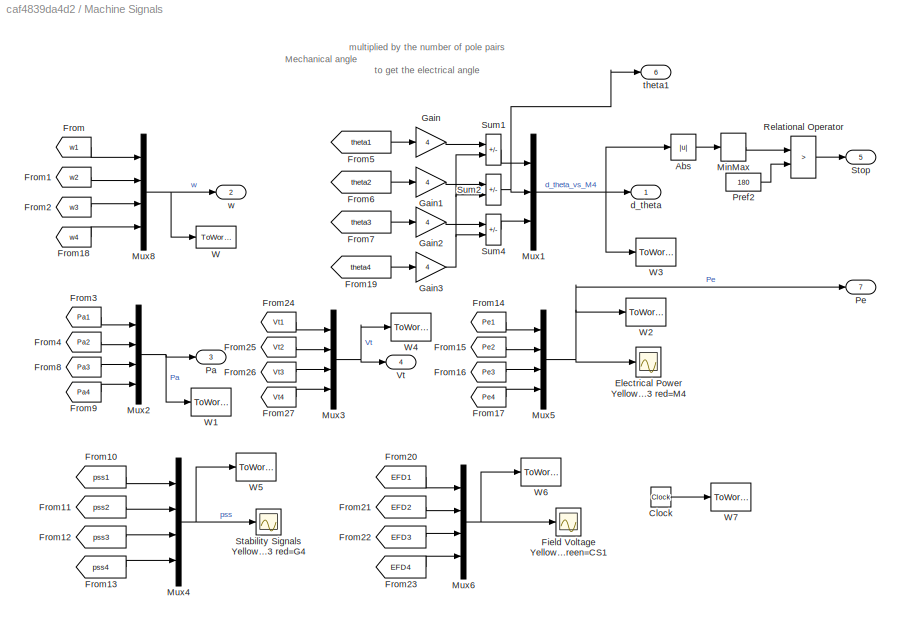
BLOCK [SubSystem] Machine Signals
  Ports = [0, 7]
  RequestExecContextInheritance = off
BLOCK [Abs] Machine Signals/Abs
BLOCK [Clock] Machine Signals/Clock
BLOCK [Scope] Machine Signals/Electrical Power Yellow=M1 mag=M2 cyan=M3 red=M4 
  Floating = off
  NumInputPorts = 1
  Ports = [1]
  ScopeSpecificationString = Simulink.scopes.TimeScopeBlockCfg('CurrentConfiguration', extmgr.ConfigurationSet(extmgr.Configuration('Core','General UI',true),extmgr.Configuration('Core','Source UI',true),extmgr.Configuration('Sources','WiredSimulink',true,'DataLoggingVariableName','ScopeData1','DataLoggingSaveFormat','StructureWithTime','DataLoggingDecimation','1','DataLoggingDecimateData',true),extmgr.Configuration('Visuals'...<+1639ch>
BLOCK [Scope] Machine Signals/Field Voltage Yellow=G1 mag=G2 cyan=G3 red=G4 green=CS1
  Floating = off
  NumInputPorts = 1
  Ports = [1]
  ScopeSpecificationString = Simulink.scopes.TimeScopeBlockCfg('CurrentConfiguration', extmgr.ConfigurationSet(extmgr.Configuration('Core','General UI',true),extmgr.Configuration('Core','Source UI',true),extmgr.Configuration('Sources','WiredSimulink',true,'DataLoggingVariableName','ScopeData4','DataLoggingSaveFormat','StructureWithTime','DataLoggingDecimation','1','DataLoggingDecimateData',true),extmgr.Configuration('Visuals'...<+1584ch>
BLOCK [From] Machine Signals/From
  CloseFcn = tagdialog Close
  GotoTag = w1
  TagVisibility = global
BLOCK [From] Machine Signals/From1
  CloseFcn = tagdialog Close
  GotoTag = w2
  TagVisibility = global
BLOCK [From] Machine Signals/From10
  CloseFcn = tagdialog Close
  GotoTag = pss1
  TagVisibility = global
BLOCK [From] Machine Signals/From11
  CloseFcn = tagdialog Close
  GotoTag = pss2
  TagVisibility = global
BLOCK [From] Machine Signals/From12
  CloseFcn = tagdialog Close
  GotoTag = pss3
  TagVisibility = global
BLOCK [From] Machine Signals/From13
  CloseFcn = tagdialog Close
  GotoTag = pss4
  TagVisibility = global
BLOCK [From] Machine Signals/From14
  CloseFcn = tagdialog Close
  GotoTag = Pe1
  TagVisibility = global
BLOCK [From] Machine Signals/From15
  CloseFcn = tagdialog Close
  GotoTag = Pe2
  TagVisibility = global
BLOCK [From] Machine Signals/From16
  CloseFcn = tagdialog Close
  GotoTag = Pe3
  TagVisibility = global
BLOCK [From] Machine Signals/From17
  CloseFcn = tagdialog Close
  GotoTag = Pe4
  TagVisibility = global
BLOCK [From] Machine Signals/From18
  CloseFcn = tagdialog Close
  GotoTag = w4
  TagVisibility = global
BLOCK [From] Machine Signals/From19
  CloseFcn = tagdialog Close
  GotoTag = theta4
  TagVisibility = global
BLOCK [From] Machine Signals/From2
  CloseFcn = tagdialog Close
  GotoTag = w3
  TagVisibility = global
BLOCK [From] Machine Signals/From20
  CloseFcn = tagdialog Close
  GotoTag = EFD1
  TagVisibility = global
BLOCK [From] Machine Signals/From21
  CloseFcn = tagdialog Close
  GotoTag = EFD2
  TagVisibility = global
BLOCK [From] Machine Signals/From22
  CloseFcn = tagdialog Close
  GotoTag = EFD3
  TagVisibility = global
BLOCK [From] Machine Signals/From23
  CloseFcn = tagdialog Close
  GotoTag = EFD4
  TagVisibility = global
BLOCK [From] Machine Signals/From24
  CloseFcn = tagdialog Close
  GotoTag = Vt1
  TagVisibility = global
BLOCK [From] Machine Signals/From25
  CloseFcn = tagdialog Close
  GotoTag = Vt2
  TagVisibility = global
BLOCK [From] Machine Signals/From26
  CloseFcn = tagdialog Close
  GotoTag = Vt3
  TagVisibility = global
BLOCK [From] Machine Signals/From27
  CloseFcn = tagdialog Close
  GotoTag = Vt4
  TagVisibility = global
BLOCK [From] Machine Signals/From3
  CloseFcn = tagdialog Close
  GotoTag = Pa1
  TagVisibility = global
BLOCK [From] Machine Signals/From4
  CloseFcn = tagdialog Close
  GotoTag = Pa2
  TagVisibility = global
BLOCK [From] Machine Signals/From5
  CloseFcn = tagdialog Close
  GotoTag = theta1
  TagVisibility = global
BLOCK [From] Machine Signals/From6
  CloseFcn = tagdialog Close
  GotoTag = theta2
  TagVisibility = global
BLOCK [From] Machine Signals/From7
  CloseFcn = tagdialog Close
  GotoTag = theta3
  TagVisibility = global
BLOCK [From] Machine Signals/From8
  CloseFcn = tagdialog Close
  GotoTag = Pa3
  TagVisibility = global
BLOCK [From] Machine Signals/From9
  CloseFcn = tagdialog Close
  GotoTag = Pa4
  TagVisibility = global
BLOCK [Gain] Machine Signals/Gain
  Gain = 4
BLOCK [Gain] Machine Signals/Gain1
  Gain = 4
BLOCK [Gain] Machine Signals/Gain2
  Gain = 4
BLOCK [Gain] Machine Signals/Gain3
  Gain = 4
BLOCK [MinMax] Machine Signals/MinMax
  Function = max
  InputSameDT = on
  Ports = [1, 1]
  SaturateOnIntegerOverflow = on
BLOCK [Mux] Machine Signals/Mux1
  DisplayOption = bar
  Inputs = 3
  Ports = [3, 1]
BLOCK [Mux] Machine Signals/Mux2
  DisplayOption = bar
  Ports = [4, 1]
BLOCK [Mux] Machine Signals/Mux3
  DisplayOption = bar
  Ports = [4, 1]
BLOCK [Mux] Machine Signals/Mux4
  DisplayOption = bar
  Ports = [4, 1]
BLOCK [Mux] Machine Signals/Mux5
  DisplayOption = bar
  Ports = [4, 1]
BLOCK [Mux] Machine Signals/Mux6
  DisplayOption = bar
  Ports = [4, 1]
BLOCK [Mux] Machine Signals/Mux8
  DisplayOption = bar
  Ports = [4, 1]
BLOCK [Outport] Machine Signals/Pa
  Port = 3
  VectorParamsAs1DForOutWhenUnconnected = off
BLOCK [Outport] Machine Signals/Pe
  Port = 7
  VectorParamsAs1DForOutWhenUnconnected = off
BLOCK [Constant] Machine Signals/Pref2
  NameLocation = top
  Value = 180
BLOCK [RelationalOperator] Machine Signals/Relational Operator
  Operator = >
  Ports = [2, 1]
BLOCK [Scope] Machine Signals/Stability Signals Yellow=G1 mag=G2 cyan=G3 red=G4 
  Floating = off
  NumInputPorts = 1
  Ports = [1]
  ScopeSpecificationString = Simulink.scopes.TimeScopeBlockCfg('CurrentConfiguration', extmgr.ConfigurationSet(extmgr.Configuration('Core','General UI',true),extmgr.Configuration('Core','Source UI',true),extmgr.Configuration('Sources','WiredSimulink',true,'DataLoggingVariableName','ScopeData3','DataLoggingSaveFormat','StructureWithTime','DataLoggingDecimation','1','DataLoggingDecimateData',true),extmgr.Configuration('Visuals'...<+1631ch>
BLOCK [Outport] Machine Signals/Stop
  Port = 5
  VectorParamsAs1DForOutWhenUnconnected = off
BLOCK [Sum] Machine Signals/Sum1
  IconShape = rectangular
  InputSameDT = on
  Inputs = +-
  OutDataTypeStr = Inherit: Same as first input
  Ports = [2, 1]
  SaturateOnIntegerOverflow = on
BLOCK [Sum] Machine Signals/Sum2
  IconShape = rectangular
  InputSameDT = on
  Inputs = +-
  OutDataTypeStr = Inherit: Same as first input
  Ports = [2, 1]
  SaturateOnIntegerOverflow = on
BLOCK [Sum] Machine Signals/Sum4
  IconShape = rectangular
  InputSameDT = on
  Inputs = +-
  OutDataTypeStr = Inherit: Same as first input
  Ports = [2, 1]
  SaturateOnIntegerOverflow = on
BLOCK [Outport] Machine Signals/Vt
  Port = 4
  VectorParamsAs1DForOutWhenUnconnected = off
BLOCK [ToWorkspace] Machine Signals/W
  MaxDataPoints = inf
  Ports = [1]
  SampleTime = 1/60
  VariableName = w
BLOCK [ToWorkspace] Machine Signals/W1
  MaxDataPoints = inf
  Ports = [1]
  SampleTime = 1/60
  VariableName = Pa
BLOCK [ToWorkspace] Machine Signals/W2
  MaxDataPoints = inf
  Ports = [1]
  SampleTime = 1/60
  VariableName = Pe
BLOCK [ToWorkspace] Machine Signals/W3
  MaxDataPoints = inf
  Ports = [1]
  SampleTime = 1/60
  VariableName = DTH
BLOCK [ToWorkspace] Machine Signals/W4
  MaxDataPoints = inf
  Ports = [1]
  SampleTime = 1/60
  VariableName = Vt
BLOCK [ToWorkspace] Machine Signals/W5
  MaxDataPoints = inf
  Ports = [1]
  SampleTime = 1/60
  VariableName = PSS
BLOCK [ToWorkspace] Machine Signals/W6
  MaxDataPoints = inf
  Ports = [1]
  SampleTime = 1/60
  VariableName = EFD
BLOCK [ToWorkspace] Machine Signals/W7
  MaxDataPoints = inf
  Ports = [1]
  SampleTime = 1/60
  VariableName = t
BLOCK [Outport] Machine Signals/d_theta
  VectorParamsAs1DForOutWhenUnconnected = off
BLOCK [Outport] Machine Signals/theta1
  Port = 6
  VectorParamsAs1DForOutWhenUnconnected = off
BLOCK [Outport] Machine Signals/w
  Port = 2
  VectorParamsAs1DForOutWhenUnconnected = off
BLOCK [Scope] Machines
  Floating = off
  NameLocation = top
  NumInputPorts = 4
  Ports = [4]
  ScopeSpecificationString = Simulink.scopes.TimeScopeBlockCfg('CurrentConfiguration', extmgr.ConfigurationSet(extmgr.Configuration('Core','General UI',true),extmgr.Configuration('Core','Source UI',true),extmgr.Configuration('Sources','WiredSimulink',true,'DataLoggingVariableName','mach','DataLoggingSaveFormat','StructureWithTime','DataLoggingDecimation','1','DataLoggingDecimateData',true,'DataLogging',true),extmgr.Configurat...<+3876ch>
BLOCK [Mux] Mux2
  DisplayOption = bar
  Inputs = 2
  Ports = [2, 1]
BLOCK [Mux] Mux3
  DisplayOption = bar
  Inputs = 2
  Ports = [2, 1]
BLOCK [Mux] Mux4
  DisplayOption = bar
  Inputs = 2
  Ports = [2, 1]
BLOCK [Mux] Mux5
  DisplayOption = bar
  Inputs = 2
  Ports = [2, 1]
BLOCK [Mux] Mux6
  DisplayOption = bar
  Inputs = 2
  Ports = [2, 1]
BLOCK [Constant] PSS model
  Value = 2
BLOCK [Stop] Stop simulation if loss of synchronism
BLOCK [SubSystem] SubSystem
  OpenFcn = openfig('psbPSSbode.fig');
  Ports = []
  RequestExecContextInheritance = off
BLOCK [SubSystem] SubSystem3
  OpenFcn = openfig('psbPSSstep.fig');
  Ports = []
  RequestExecContextInheritance = off
BLOCK [SubSystem] SubSystem4
  OpenFcn = openfig('psbPSSfault.fig');
  Ports = []
  RequestExecContextInheritance = off
BLOCK [Scope] System
  Floating = off
  NameLocation = top
  NumInputPorts = 2
  Ports = [2]
  ScopeSpecificationString = Simulink.scopes.TimeScopeBlockCfg('CurrentConfiguration', extmgr.ConfigurationSet(extmgr.Configuration('Core','General UI',true),extmgr.Configuration('Core','Source UI',true),extmgr.Configuration('Sources','WiredSimulink',true,'DataLoggingVariableName','V_P','DataLoggingSaveFormat','StructureWithTime','DataLoggingDecimation','1','DataLoggingDecimateData',true,'DataLogging',true),extmgr.Configurati...<+2398ch>
BLOCK [SubSystem] System Data
  NameLocation = top
  Ports = [0, 2]
  RequestExecContextInheritance = off
BLOCK [Gain] System Data/->MW
  Gain = 1e-6
  OutDataTypeStr = Inherit: Same as input
  ParamDataTypeStr = Inherit: Same as input
  SaturateOnIntegerOverflow = on
BLOCK [Gain] System Data/->pu
  Gain = 1/(230e3/sqrt(3)*sqrt(2))
  OutDataTypeStr = Inherit: Same as input
  ParamDataTypeStr = Inherit: Same as input
  SaturateOnIntegerOverflow = on
BLOCK [ComplexToMagnitudeAngle] System Data/Complex to Magnitude-Angle
  Output = Magnitude
  Ports = [1, 1]
BLOCK [ComplexToMagnitudeAngle] System Data/Complex to Magnitude-Angle1
  Output = Magnitude
  Ports = [1, 1]
BLOCK [From] System Data/From
  CloseFcn = tagdialog Close
  GotoTag = Vabc_B1
  TagVisibility = global
BLOCK [From] System Data/From1
  CloseFcn = tagdialog Close
  GotoTag = Iabc_B1
  TagVisibility = global
BLOCK [From] System Data/From2
  CloseFcn = tagdialog Close
  GotoTag = Vabc_B2
  TagVisibility = global
BLOCK [From] System Data/From3
  CloseFcn = tagdialog Close
  GotoTag = Iabc_B2
  TagVisibility = global
BLOCK [Mux] System Data/Mux
  DisplayOption = bar
  Inputs = 2
  Ports = [2, 1]
BLOCK [Outport] System Data/P_B1->B2
  Port = 2
  VectorParamsAs1DForOutWhenUnconnected = off
BLOCK [Reference] System Data/Power (3ph, Phasor)  REF=spsPower3phPhasorLib/Power
(3ph, Phasor)
  Ports = [2, 2]
  SourceBlock = spsPower3phPhasorLib/Power\n(3ph, Phasor)
  SourceProductBaseCode = PS
  SourceType = Power (3ph, Phasor)
BLOCK [Reference] System Data/Sequence Analyzer (Phasor)  REF=spsSequenceAnalyzerPhasorLib/Sequence Analyzer
(Phasor)
  Ports = [1, 2]
  SourceBlock = spsSequenceAnalyzerPhasorLib/Sequence Analyzer\n(Phasor)
  SourceProductBaseCode = PS
  SourceType = Sequence Analyzer (Phasor)
BLOCK [Reference] System Data/Sequence Analyzer (Phasor)1  REF=spsSequenceAnalyzerPhasorLib/Sequence Analyzer
(Phasor)
  Ports = [1, 2]
  SourceBlock = spsSequenceAnalyzerPhasorLib/Sequence Analyzer\n(Phasor)
  SourceProductBaseCode = PS
  SourceType = Sequence Analyzer (Phasor)
BLOCK [Terminator] System Data/Terminator
BLOCK [Terminator] System Data/Terminator1
BLOCK [Terminator] System Data/Terminator2
BLOCK [Terminator] System Data/Terminator3
BLOCK [Scope] System Data/Vabc_B1
  Floating = off
  NumInputPorts = 1
  Ports = [1]
  ScopeSpecificationString = Simulink.scopes.TimeScopeBlockCfg('CurrentConfiguration', extmgr.ConfigurationSet(extmgr.Configuration('Core','General UI',true),extmgr.Configuration('Core','Source UI',true),extmgr.Configuration('Sources','WiredSimulink',true,'DataLoggingVariableName','mach2','DataLoggingSaveFormat','StructureWithTime','DataLoggingDecimation','1','DataLoggingDecimateData',true),extmgr.Configuration('Visuals','Tim...<+1861ch>
BLOCK [Scope] System Data/Vabc_B2
  Floating = off
  NumInputPorts = 1
  Ports = [1]
  ScopeSpecificationString = Simulink.scopes.TimeScopeBlockCfg('CurrentConfiguration', extmgr.ConfigurationSet(extmgr.Configuration('Core','General UI',true),extmgr.Configuration('Core','Source UI',true),extmgr.Configuration('Sources','WiredSimulink',true,'DataLoggingVariableName','mach3','DataLoggingSaveFormat','StructureWithTime','DataLoggingDecimation','1','DataLoggingDecimateData',true),extmgr.Configuration('Visuals','Tim...<+1831ch>
BLOCK [Outport] System Data/Vps
  VectorParamsAs1DForOutWhenUnconnected = off
BLOCK [ToWorkspace] System Data/W2
  MaxDataPoints = inf
  Ports = [1]
  SampleTime = 1/60
  VariableName = P
BLOCK [Scope] delta1
  Floating = off
  NumInputPorts = 1
  Ports = [1]
  ScopeSpecificationString = Simulink.scopes.TimeScopeBlockCfg('CurrentConfiguration', extmgr.ConfigurationSet(extmgr.Configuration('Core','General UI',true),extmgr.Configuration('Core','Source UI',true),extmgr.Configuration('Sources','WiredSimulink',true,'DataLoggingVariableName','Pe1','DataLoggingSaveFormat','StructureWithTime','DataLoggingDecimation','1','DataLoggingDecimateData',true,'DataLogging',true),extmgr.Configurati...<+1723ch>
BLOCK [Reference] powergui  REF=spspowerguiLib/powergui
  Ports = []
  Priority = 2
  SourceBlock = spspowerguiLib/powergui
  SourceProductBaseCode = PS
  SourceType = PSB option menu block
ANNOTATION (root): ---->
ANNOTATION (root): 0 (No PSS) 1 (MB-PSS) 2 (Delta w PSS from Kundur) 3 (Delta Pa PSS)
ANNOTATION (root): 413 MW
ANNOTATION (root): M1: yellow M2: magenta M3: cyan M4: red
ANNOTATION (root): Performance of Three PSS for Interarea Oscillations
ANNOTATION (root): Select a specific PSS model by typing:
ANNOTATION Area 1: 0 = No PSS 1 = MB-PSS
ANNOTATION Area 1: 2 = Delta w (Kundur)
ANNOTATION Area 1: 3 = Delta Pa
ANNOTATION Area 1: ==> to Bus B1
ANNOTATION Area 1: Area 1
ANNOTATION Area 1/M1: Turbine & Regulators: MACHINE 1
ANNOTATION Area 1/M2: Turbine & Regulators: MACHINE 2
ANNOTATION Area 2: 0 = No PSS 1 = MB-PSS
ANNOTATION Area 2: 2 = Delta w (Kundur)
ANNOTATION Area 2: 3 = Delta Pa
ANNOTATION Area 2: ==> to Bus B2
ANNOTATION Area 2: Area 2
ANNOTATION Area 2/M3: Turbine & Regulators: MACHINE 3
ANNOTATION Area 2/M4: Turbine & Regulators: MACHINE 4
ANNOTATION Estimate1/differential tracker1: Design the gain of kight blue gain blocks!
ANNOTATION Estimate1/differential tracker1: hat_x
ANNOTATION Estimate1/differential tracker1: theta1
ANNOTATION Estimate1/differential tracker2: Design the gain of kight blue gain blocks!
ANNOTATION Estimate1/differential tracker2: hat_x
ANNOTATION Estimate1/differential tracker2: theta1
ANNOTATION Machine Signals: Mechanical angle
ANNOTATION Machine Signals: multiplied by the number of pole pairs to get the electrical angle
NET Area 1/From:1 -> Area 1/M1: Turbine & Regulators:4, Area 1/M2: Turbine & Regulators:4
LINE Area 1/M1 900 MVA:1 -> Area 1/M1: Turbine & Regulators:1
NET Area 1/M1: Turbine & Regulators/Bus Selector:1 -> Area 1/M1: Turbine & Regulators/EXCITATION:2, Area 1/M1: Turbine & Regulators/Real-Imag to Complex:1
NET Area 1/M1: Turbine & Regulators/Bus Selector:2 -> Area 1/M1: Turbine & Regulators/EXCITATION:3, Area 1/M1: Turbine & Regulators/Real-Imag to Complex:2
LINE Area 1/M1: Turbine & Regulators/Bus Selector:3 -> Area 1/M1: Turbine & Regulators/STG:4
NET Area 1/M1: Turbine & Regulators/Bus Selector:4 -> Area 1/M1: Turbine & Regulators/Goto2:1, Area 1/M1: Turbine & Regulators/STG:3
NET Area 1/M1: Turbine & Regulators/Bus Selector:5 -> Area 1/M1: Turbine & Regulators/Goto6:1, Area 1/M1: Turbine & Regulators/Sum2:1
NET Area 1/M1: Turbine & Regulators/Bus Selector:6 -> Area 1/M1: Turbine & Regulators/Delta w PSS (Kundur) :1, Area 1/M1: Turbine & Regulators/MB-PSS :1
LINE Area 1/M1: Turbine & Regulators/Bus Selector:7 -> Area 1/M1: Turbine & Regulators/Goto:1
LINE Area 1/M1: Turbine & Regulators/Complex to Magnitude-Angle:1 -> Area 1/M1: Turbine & Regulators/Goto1:1
LINE Area 1/M1: Turbine & Regulators/Delta Pa PSS :1 -> Area 1/M1: Turbine & Regulators/Multiport Switch:5
LINE Area 1/M1: Turbine & Regulators/Delta w PSS (Kundur) :1 -> Area 1/M1: Turbine & Regulators/Multiport Switch:4
NET Area 1/M1: Turbine & Regulators/EXCITATION:1 -> Area 1/M1: Turbine & Regulators/Goto5:1, Area 1/M1: Turbine & Regulators/Vf:1
LINE Area 1/M1: Turbine & Regulators/MB-PSS :1 -> Area 1/M1: Turbine & Regulators/Multiport Switch:3
NET Area 1/M1: Turbine & Regulators/Multiport Switch:1 -> Area 1/M1: Turbine & Regulators/EXCITATION:4, Area 1/M1: Turbine & Regulators/Goto4:1
LINE Area 1/M1: Turbine & Regulators/PSS model1:1 -> Area 1/M1: Turbine & Regulators/Multiport Switch:2
LINE Area 1/M1: Turbine & Regulators/PSS model2:1 -> Area 1/M1: Turbine & Regulators/Sum1:2
LINE Area 1/M1: Turbine & Regulators/PSS:1 -> Area 1/M1: Turbine & Regulators/Sum1:1
LINE Area 1/M1: Turbine & Regulators/Pref:1 -> Area 1/M1: Turbine & Regulators/STG:2
LINE Area 1/M1: Turbine & Regulators/Real-Imag to Complex:1 -> Area 1/M1: Turbine & Regulators/Complex to Magnitude-Angle:1
LINE Area 1/M1: Turbine & Regulators/STG:1 -> Area 1/M1: Turbine & Regulators/Terminator2:1
LINE Area 1/M1: Turbine & Regulators/STG:2 -> Area 1/M1: Turbine & Regulators/Terminator1:1
LINE Area 1/M1: Turbine & Regulators/STG:3 -> Area 1/M1: Turbine & Regulators/Terminator:1
NET Area 1/M1: Turbine & Regulators/STG:4 -> Area 1/M1: Turbine & Regulators/Pm:1, Area 1/M1: Turbine & Regulators/Sum2:2
LINE Area 1/M1: Turbine & Regulators/Sum1:1 -> Area 1/M1: Turbine & Regulators/Multiport Switch:1
NET Area 1/M1: Turbine & Regulators/Sum2:1 -> Area 1/M1: Turbine & Regulators/Delta Pa PSS :1, Area 1/M1: Turbine & Regulators/Goto3:1
LINE Area 1/M1: Turbine & Regulators/Vref:1 -> Area 1/M1: Turbine & Regulators/EXCITATION:1
LINE Area 1/M1: Turbine & Regulators/m:1 -> Area 1/M1: Turbine & Regulators/Bus Selector:1
LINE Area 1/M1: Turbine & Regulators/wref:1 -> Area 1/M1: Turbine & Regulators/STG:1
LINE Area 1/M1: Turbine & Regulators:1 -> Area 1/M1 900 MVA:1
LINE Area 1/M1: Turbine & Regulators:2 -> Area 1/M1 900 MVA:2
LINE Area 1/M2 900 MVA:1 -> Area 1/M2: Turbine & Regulators:1
NET Area 1/M2: Turbine & Regulators/Bus Selector:1 -> Area 1/M2: Turbine & Regulators/EXCITATION:2, Area 1/M2: Turbine & Regulators/Real-Imag to Complex:1
NET Area 1/M2: Turbine & Regulators/Bus Selector:2 -> Area 1/M2: Turbine & Regulators/EXCITATION:3, Area 1/M2: Turbine & Regulators/Real-Imag to Complex:2
LINE Area 1/M2: Turbine & Regulators/Bus Selector:3 -> Area 1/M2: Turbine & Regulators/STG:4
NET Area 1/M2: Turbine & Regulators/Bus Selector:4 -> Area 1/M2: Turbine & Regulators/Goto2:1, Area 1/M2: Turbine & Regulators/STG:3
NET Area 1/M2: Turbine & Regulators/Bus Selector:5 -> Area 1/M2: Turbine & Regulators/Goto6:1, Area 1/M2: Turbine & Regulators/Sum2:1
NET Area 1/M2: Turbine & Regulators/Bus Selector:6 -> Area 1/M2: Turbine & Regulators/Delta w PSS (Kundur) :1, Area 1/M2: Turbine & Regulators/MB-PSS :1
LINE Area 1/M2: Turbine & Regulators/Bus Selector:7 -> Area 1/M2: Turbine & Regulators/Goto:1
LINE Area 1/M2: Turbine & Regulators/Complex to Magnitude-Angle:1 -> Area 1/M2: Turbine & Regulators/Goto1:1
LINE Area 1/M2: Turbine & Regulators/Delta Pa PSS :1 -> Area 1/M2: Turbine & Regulators/Multiport Switch:5
LINE Area 1/M2: Turbine & Regulators/Delta w PSS (Kundur) :1 -> Area 1/M2: Turbine & Regulators/Multiport Switch:4
NET Area 1/M2: Turbine & Regulators/EXCITATION:1 -> Area 1/M2: Turbine & Regulators/Goto5:1, Area 1/M2: Turbine & Regulators/Vf:1
LINE Area 1/M2: Turbine & Regulators/MB-PSS :1 -> Area 1/M2: Turbine & Regulators/Multiport Switch:3
NET Area 1/M2: Turbine & Regulators/Multiport Switch:1 -> Area 1/M2: Turbine & Regulators/EXCITATION:4, Area 1/M2: Turbine & Regulators/Goto4:1
LINE Area 1/M2: Turbine & Regulators/PSS model1:1 -> Area 1/M2: Turbine & Regulators/Multiport Switch:2
LINE Area 1/M2: Turbine & Regulators/PSS model2:1 -> Area 1/M2: Turbine & Regulators/Sum1:2
LINE Area 1/M2: Turbine & Regulators/PSS:1 -> Area 1/M2: Turbine & Regulators/Sum1:1
LINE Area 1/M2: Turbine & Regulators/Pref:1 -> Area 1/M2: Turbine & Regulators/STG:2
LINE Area 1/M2: Turbine & Regulators/Real-Imag to Complex:1 -> Area 1/M2: Turbine & Regulators/Complex to Magnitude-Angle:1
LINE Area 1/M2: Turbine & Regulators/STG:1 -> Area 1/M2: Turbine & Regulators/Terminator:1
LINE Area 1/M2: Turbine & Regulators/STG:2 -> Area 1/M2: Turbine & Regulators/Terminator1:1
LINE Area 1/M2: Turbine & Regulators/STG:3 -> Area 1/M2: Turbine & Regulators/Terminator2:1
NET Area 1/M2: Turbine & Regulators/STG:4 -> Area 1/M2: Turbine & Regulators/Pm:1, Area 1/M2: Turbine & Regulators/Sum2:2
LINE Area 1/M2: Turbine & Regulators/Sum1:1 -> Area 1/M2: Turbine & Regulators/Multiport Switch:1
NET Area 1/M2: Turbine & Regulators/Sum2:1 -> Area 1/M2: Turbine & Regulators/Delta Pa PSS :1, Area 1/M2: Turbine & Regulators/Goto3:1
LINE Area 1/M2: Turbine & Regulators/Vref:1 -> Area 1/M2: Turbine & Regulators/EXCITATION:1
LINE Area 1/M2: Turbine & Regulators/m:1 -> Area 1/M2: Turbine & Regulators/Bus Selector:1
LINE Area 1/M2: Turbine & Regulators/wref:1 -> Area 1/M2: Turbine & Regulators/STG:1
LINE Area 1/M2: Turbine & Regulators:1 -> Area 1/M2 900 MVA:1
LINE Area 1/M2: Turbine & Regulators:2 -> Area 1/M2 900 MVA:2
LINE Area 1/Pref1:1 -> Area 1/M1: Turbine & Regulators:2
LINE Area 1/Pref2:1 -> Area 1/M2: Turbine & Regulators:2
LINE Area 1/Stair Generator:1 -> Area 1/Switch:2
LINE Area 1/Switch:1 -> Area 1/M1: Turbine & Regulators:3
LINE Area 1/Vref1 :1 -> Area 1/Switch:1
LINE Area 1/Vref1:1 -> Area 1/Switch:3
LINE Area 1/Vref2:1 -> Area 1/M2: Turbine & Regulators:3
NET Area 2/From:1 -> Area 2/M3: Turbine & Regulators:4, Area 2/M4: Turbine & Regulators:4
LINE Area 2/M3 900 MVA:1 -> Area 2/M3: Turbine & Regulators:1
NET Area 2/M3: Turbine & Regulators/Bus Selector:1 -> Area 2/M3: Turbine & Regulators/EXCITATION:2, Area 2/M3: Turbine & Regulators/Real-Imag to Complex:1
NET Area 2/M3: Turbine & Regulators/Bus Selector:2 -> Area 2/M3: Turbine & Regulators/EXCITATION:3, Area 2/M3: Turbine & Regulators/Real-Imag to Complex:2
LINE Area 2/M3: Turbine & Regulators/Bus Selector:3 -> Area 2/M3: Turbine & Regulators/STG:4
NET Area 2/M3: Turbine & Regulators/Bus Selector:4 -> Area 2/M3: Turbine & Regulators/Goto2:1, Area 2/M3: Turbine & Regulators/STG:3
NET Area 2/M3: Turbine & Regulators/Bus Selector:5 -> Area 2/M3: Turbine & Regulators/Goto6:1, Area 2/M3: Turbine & Regulators/Sum2:1
NET Area 2/M3: Turbine & Regulators/Bus Selector:6 -> Area 2/M3: Turbine & Regulators/Delta w PSS (Kundur) :1, Area 2/M3: Turbine & Regulators/MB-PSS :1
LINE Area 2/M3: Turbine & Regulators/Bus Selector:7 -> Area 2/M3: Turbine & Regulators/Goto:1
LINE Area 2/M3: Turbine & Regulators/Complex to Magnitude-Angle:1 -> Area 2/M3: Turbine & Regulators/Goto1:1
LINE Area 2/M3: Turbine & Regulators/Delta Pa PSS :1 -> Area 2/M3: Turbine & Regulators/Multiport Switch:5
LINE Area 2/M3: Turbine & Regulators/Delta w PSS (Kundur) :1 -> Area 2/M3: Turbine & Regulators/Multiport Switch:4
NET Area 2/M3: Turbine & Regulators/EXCITATION:1 -> Area 2/M3: Turbine & Regulators/Goto5:1, Area 2/M3: Turbine & Regulators/Vf:1
LINE Area 2/M3: Turbine & Regulators/MB-PSS :1 -> Area 2/M3: Turbine & Regulators/Multiport Switch:3
NET Area 2/M3: Turbine & Regulators/Multiport Switch:1 -> Area 2/M3: Turbine & Regulators/EXCITATION:4, Area 2/M3: Turbine & Regulators/Goto4:1
LINE Area 2/M3: Turbine & Regulators/PSS model1:1 -> Area 2/M3: Turbine & Regulators/Multiport Switch:2
LINE Area 2/M3: Turbine & Regulators/PSS model2:1 -> Area 2/M3: Turbine & Regulators/Sum1:2
LINE Area 2/M3: Turbine & Regulators/PSS:1 -> Area 2/M3: Turbine & Regulators/Sum1:1
LINE Area 2/M3: Turbine & Regulators/Pref:1 -> Area 2/M3: Turbine & Regulators/STG:2
LINE Area 2/M3: Turbine & Regulators/Real-Imag to Complex:1 -> Area 2/M3: Turbine & Regulators/Complex to Magnitude-Angle:1
LINE Area 2/M3: Turbine & Regulators/STG:1 -> Area 2/M3: Turbine & Regulators/Terminator:1
LINE Area 2/M3: Turbine & Regulators/STG:2 -> Area 2/M3: Turbine & Regulators/Terminator1:1
LINE Area 2/M3: Turbine & Regulators/STG:3 -> Area 2/M3: Turbine & Regulators/Terminator2:1
NET Area 2/M3: Turbine & Regulators/STG:4 -> Area 2/M3: Turbine & Regulators/Pm:1, Area 2/M3: Turbine & Regulators/Sum2:2
LINE Area 2/M3: Turbine & Regulators/Sum1:1 -> Area 2/M3: Turbine & Regulators/Multiport Switch:1
NET Area 2/M3: Turbine & Regulators/Sum2:1 -> Area 2/M3: Turbine & Regulators/Delta Pa PSS :1, Area 2/M3: Turbine & Regulators/Goto3:1
LINE Area 2/M3: Turbine & Regulators/Vref:1 -> Area 2/M3: Turbine & Regulators/EXCITATION:1
LINE Area 2/M3: Turbine & Regulators/m:1 -> Area 2/M3: Turbine & Regulators/Bus Selector:1
LINE Area 2/M3: Turbine & Regulators/wref:1 -> Area 2/M3: Turbine & Regulators/STG:1
LINE Area 2/M3: Turbine & Regulators:1 -> Area 2/M3 900 MVA:1
LINE Area 2/M3: Turbine & Regulators:2 -> Area 2/M3 900 MVA:2
LINE Area 2/M4 900 MVA:1 -> Area 2/M4: Turbine & Regulators:1
NET Area 2/M4: Turbine & Regulators/Bus Selector:1 -> Area 2/M4: Turbine & Regulators/EXCITATION:2, Area 2/M4: Turbine & Regulators/Real-Imag to Complex:1
NET Area 2/M4: Turbine & Regulators/Bus Selector:2 -> Area 2/M4: Turbine & Regulators/EXCITATION:3, Area 2/M4: Turbine & Regulators/Real-Imag to Complex:2
LINE Area 2/M4: Turbine & Regulators/Bus Selector:3 -> Area 2/M4: Turbine & Regulators/STG:4
NET Area 2/M4: Turbine & Regulators/Bus Selector:4 -> Area 2/M4: Turbine & Regulators/Goto2:1, Area 2/M4: Turbine & Regulators/STG:3
NET Area 2/M4: Turbine & Regulators/Bus Selector:5 -> Area 2/M4: Turbine & Regulators/Goto6:1, Area 2/M4: Turbine & Regulators/Sum2:1
NET Area 2/M4: Turbine & Regulators/Bus Selector:6 -> Area 2/M4: Turbine & Regulators/Delta w PSS (Kundur) :1, Area 2/M4: Turbine & Regulators/MB-PSS :1
LINE Area 2/M4: Turbine & Regulators/Bus Selector:7 -> Area 2/M4: Turbine & Regulators/Goto:1
LINE Area 2/M4: Turbine & Regulators/Complex to Magnitude-Angle:1 -> Area 2/M4: Turbine & Regulators/Goto1:1
LINE Area 2/M4: Turbine & Regulators/Delta Pa PSS :1 -> Area 2/M4: Turbine & Regulators/Multiport Switch:5
LINE Area 2/M4: Turbine & Regulators/Delta w PSS (Kundur) :1 -> Area 2/M4: Turbine & Regulators/Multiport Switch:4
NET Area 2/M4: Turbine & Regulators/EXCITATION:1 -> Area 2/M4: Turbine & Regulators/Goto5:1, Area 2/M4: Turbine & Regulators/Vf:1
LINE Area 2/M4: Turbine & Regulators/MB-PSS :1 -> Area 2/M4: Turbine & Regulators/Multiport Switch:3
NET Area 2/M4: Turbine & Regulators/Multiport Switch:1 -> Area 2/M4: Turbine & Regulators/EXCITATION:4, Area 2/M4: Turbine & Regulators/Goto4:1
LINE Area 2/M4: Turbine & Regulators/PSS model1:1 -> Area 2/M4: Turbine & Regulators/Multiport Switch:2
LINE Area 2/M4: Turbine & Regulators/PSS model2:1 -> Area 2/M4: Turbine & Regulators/Sum1:2
LINE Area 2/M4: Turbine & Regulators/PSS:1 -> Area 2/M4: Turbine & Regulators/Sum1:1
LINE Area 2/M4: Turbine & Regulators/Pref:1 -> Area 2/M4: Turbine & Regulators/STG:2
LINE Area 2/M4: Turbine & Regulators/Real-Imag to Complex:1 -> Area 2/M4: Turbine & Regulators/Complex to Magnitude-Angle:1
LINE Area 2/M4: Turbine & Regulators/STG:1 -> Area 2/M4: Turbine & Regulators/Terminator2:1
LINE Area 2/M4: Turbine & Regulators/STG:2 -> Area 2/M4: Turbine & Regulators/Terminator1:1
LINE Area 2/M4: Turbine & Regulators/STG:3 -> Area 2/M4: Turbine & Regulators/Terminator:1
NET Area 2/M4: Turbine & Regulators/STG:4 -> Area 2/M4: Turbine & Regulators/Pm:1, Area 2/M4: Turbine & Regulators/Sum2:2
LINE Area 2/M4: Turbine & Regulators/Sum1:1 -> Area 2/M4: Turbine & Regulators/Multiport Switch:1
NET Area 2/M4: Turbine & Regulators/Sum2:1 -> Area 2/M4: Turbine & Regulators/Delta Pa PSS :1, Area 2/M4: Turbine & Regulators/Goto3:1
LINE Area 2/M4: Turbine & Regulators/Vref:1 -> Area 2/M4: Turbine & Regulators/EXCITATION:1
LINE Area 2/M4: Turbine & Regulators/m:1 -> Area 2/M4: Turbine & Regulators/Bus Selector:1
LINE Area 2/M4: Turbine & Regulators/wref:1 -> Area 2/M4: Turbine & Regulators/STG:1
LINE Area 2/M4: Turbine & Regulators:1 -> Area 2/M4 900 MVA:1
LINE Area 2/M4: Turbine & Regulators:2 -> Area 2/M4 900 MVA:2
LINE Area 2/Pref3:1 -> Area 2/M3: Turbine & Regulators:2
LINE Area 2/Pref4:1 -> Area 2/M4: Turbine & Regulators:2
LINE Area 2/Vref3:1 -> Area 2/M3: Turbine & Regulators:3
LINE Area 2/Vref4:1 -> Area 2/M4: Turbine & Regulators:3
LINE Estimate1/Add10:1 -> Estimate1/Product11:1
NET Estimate1/Add1:1 -> Estimate1/Gain2:1, Estimate1/Product3:1
LINE Estimate1/Add2:1 -> Estimate1/Integrator1:1
NET Estimate1/Add3:1 -> Estimate1/Add1:1, Estimate1/Product3:2, Estimate1/Product4:2, Estimate1/ecgnoise1:1, Estimate1/xf:1
LINE Estimate1/Add4:1 -> Estimate1/Gain1:1
LINE Estimate1/Add5:1 -> Estimate1/Add7:1
LINE Estimate1/Add6:1 -> Estimate1/Gain4:1
LINE Estimate1/Add7:1 -> Estimate1/Gain5:1
LINE Estimate1/Add8:1 -> Estimate1/MATLAB Function:1
NET Estimate1/Add9:1 -> Estimate1/Add3:2, Estimate1/Product1:1, Estimate1/Product8:2, Estimate1/Product9:2, Estimate1/differential tracker1:1
LINE Estimate1/Constant1:1 -> Estimate1/Product5:1
LINE Estimate1/Constant2:1 -> Estimate1/Add9:2
LINE Estimate1/Constant3:1 -> Estimate1/Subsystem:3
LINE Estimate1/Constant4:1 -> Estimate1/Subsystem:4
LINE Estimate1/Constant:1 -> Estimate1/Manual Switch:2
LINE Estimate1/G:1 -> Estimate1/Product6:1
NET Estimate1/Gain1:1 -> Estimate1/Add6:2, Estimate1/S:1
LINE Estimate1/Gain2:1 -> Estimate1/Add2:2
LINE Estimate1/Gain3:1 -> Estimate1/Integrator3:1
LINE Estimate1/Gain4:1 -> Estimate1/Add7:2
LINE Estimate1/Gain5:1 -> Estimate1/Integrator2:1
LINE Estimate1/Gain6:1 -> Estimate1/Integrator4:1
LINE Estimate1/Gain7:1 -> Estimate1/Integrator5:1
LINE Estimate1/ILE_system/Add10:1 -> Estimate1/ILE_system/Divide2:2
NET Estimate1/ILE_system/Clock2:1 -> Estimate1/ILE_system/Add10:1, Estimate1/ILE_system/Gain1:1
LINE Estimate1/ILE_system/Constant4:1 -> Estimate1/ILE_system/Add10:2
NET Estimate1/ILE_system/Divide1:1 -> Estimate1/ILE_system/Gain:1, Estimate1/ILE_system/Sum:2
NET Estimate1/ILE_system/Divide2:1 -> Estimate1/ILE_system/Sign2:1, Estimate1/ILE_system/exp:1
LINE Estimate1/ILE_system/Gain1:1 -> Estimate1/ILE_system/Math Function2:1
LINE Estimate1/ILE_system/Gain:1 -> Estimate1/ILE_system/Math Function:1
NET Estimate1/ILE_system/In:1 -> Estimate1/ILE_system/Product1:1, Estimate1/ILE_system/Product1:2
LINE Estimate1/ILE_system/Math Function1:1 -> Estimate1/ILE_system/Divide1:1
LINE Estimate1/ILE_system/Math Function2:1 -> Estimate1/ILE_system/Divide1:2
LINE Estimate1/ILE_system/Math Function4:1 -> Estimate1/ILE_system/Divide2:1
LINE Estimate1/ILE_system/Math Function:1 -> Estimate1/ILE_system/Sum:1
LINE Estimate1/ILE_system/Product1:1 -> Estimate1/ILE_system/Math Function1:1
LINE Estimate1/ILE_system/Sign2:1 -> Estimate1/ILE_system/sign:1
LINE Estimate1/ILE_system/Sum:1 -> Estimate1/ILE_system/Math Function4:1
LINE Estimate1/ILE_system:1 -> Estimate1/ILE:1
LINE Estimate1/ILE_system:2 -> Estimate1/ILE_sign:1
LINE Estimate1/Integrator1:1 -> Estimate1/Add1:2
NET Estimate1/Integrator2:1 -> Estimate1/MPE2:1, Estimate1/Product6:2, Estimate1/Product7:1, Estimate1/Sign1:1
NET Estimate1/Integrator3:1 -> Estimate1/MPE1:1, Estimate1/Product1:2, Estimate1/Sign3:1
NET Estimate1/Integrator4:1 -> Estimate1/MPE3:1, Estimate1/Product8:1, Estimate1/Sign2:1
NET Estimate1/Integrator5:1 -> Estimate1/MPE4:1, Estimate1/Product10:1, Estimate1/Sign4:1
LINE Estimate1/MATLAB Function:1 -> Estimate1/Product9:1
LINE Estimate1/Manual Switch:1 -> Estimate1/Add3:1
LINE Estimate1/Product10:1 -> Estimate1/Add10:1
LINE Estimate1/Product11:1 -> Estimate1/Gain7:1
LINE Estimate1/Product1:1 -> Estimate1/Add2:1
NET Estimate1/Product2:1 -> Estimate1/Add4:1, Estimate1/G:1, Estimate1/Product7:2
LINE Estimate1/Product3:1 -> Estimate1/Product5:2
LINE Estimate1/Product4:1 -> Estimate1/Add4:2
LINE Estimate1/Product5:1 -> Estimate1/Gain3:1
LINE Estimate1/Product6:1 -> Estimate1/Add5:1
LINE Estimate1/Product7:1 -> Estimate1/Add6:1
LINE Estimate1/Product8:1 -> Estimate1/Add8:2
LINE Estimate1/Product9:1 -> Estimate1/Gain6:1
LINE Estimate1/Random Gauss noise:1 -> Estimate1/Manual Switch:1
LINE Estimate1/S:1 -> Estimate1/Add5:2
LINE Estimate1/Sign1:1 -> Estimate1/MPE2_sign:1
LINE Estimate1/Sign2:1 -> Estimate1/MPE3_sign:1
LINE Estimate1/Sign3:1 -> Estimate1/MPE1_sign:1
LINE Estimate1/Sign4:1 -> Estimate1/MPE4_sign:1
LINE Estimate1/Subsystem/Add1:1 -> Estimate1/Subsystem/Phi21*:1
LINE Estimate1/Subsystem/Add2:1 -> Estimate1/Subsystem/xi1:1
LINE Estimate1/Subsystem/Add3:1 -> Estimate1/Subsystem/xi2:1
LINE Estimate1/Subsystem/Add4:1 -> Estimate1/Subsystem/z:1
LINE Estimate1/Subsystem/Add5:1 -> Estimate1/Subsystem/Y2:1
LINE Estimate1/Subsystem/Add:1 -> Estimate1/Subsystem/Gain1:1
LINE Estimate1/Subsystem/Gain1:1 -> Estimate1/Subsystem/tilde{V}:2
NET Estimate1/Subsystem/Gain2:1 -> Estimate1/Subsystem/Product3:1, Estimate1/Subsystem/Product8:2, Estimate1/Subsystem/Product9:2
NET Estimate1/Subsystem/Gain:1 -> Estimate1/Subsystem/Product5:1, Estimate1/Subsystem/Product:1
NET Estimate1/Subsystem/Phi11:1 -> Estimate1/Subsystem/Product1:1, Estimate1/Subsystem/Product1:2, Estimate1/Subsystem/Product4:1
NET Estimate1/Subsystem/Phi21*:1 -> Estimate1/Subsystem/Phi21:1, Estimate1/Subsystem/Product2:1, Estimate1/Subsystem/Product2:2, Estimate1/Subsystem/Product3:2, Estimate1/Subsystem/Product:2
LINE Estimate1/Subsystem/Product1:1 -> Estimate1/Subsystem/Add:1
LINE Estimate1/Subsystem/Product2:1 -> Estimate1/Subsystem/Add:2
LINE Estimate1/Subsystem/Product3:1 -> Estimate1/Subsystem/Add1:2
LINE Estimate1/Subsystem/Product4:1 -> Estimate1/Subsystem/Add1:1
LINE Estimate1/Subsystem/Product5:1 -> Estimate1/Subsystem/Add2:1
LINE Estimate1/Subsystem/Product6:1 -> Estimate1/Subsystem/Add2:2
LINE Estimate1/Subsystem/Product7:1 -> Estimate1/Subsystem/Add3:1
LINE Estimate1/Subsystem/Product8:1 -> Estimate1/Subsystem/Add3:2
LINE Estimate1/Subsystem/Product9:1 -> Estimate1/Subsystem/Add4:2
LINE Estimate1/Subsystem/Product:1 -> Estimate1/Subsystem/Phi11:1
NET Estimate1/Subsystem/alpha*x:1 -> Estimate1/Subsystem/Gain:1, Estimate1/Subsystem/Product4:2, Estimate1/Subsystem/Product6:1, Estimate1/Subsystem/Product7:1
LINE Estimate1/Subsystem/alpha*y:1 -> Estimate1/Subsystem/Add4:1
NET Estimate1/Subsystem/alpha:1 -> Estimate1/Subsystem/alpha*x:2, Estimate1/Subsystem/alpha*y:1
LINE Estimate1/Subsystem/beta:1 -> Estimate1/Subsystem/tilde{V}:1
LINE Estimate1/Subsystem/tilde{V}:1 -> Estimate1/Subsystem/Gain2:1
LINE Estimate1/Subsystem/x:1 -> Estimate1/Subsystem/alpha*x:1
LINE Estimate1/Subsystem/xi1:1 -> Estimate1/Subsystem/Product7:2
NET Estimate1/Subsystem/xi2:1 -> Estimate1/Subsystem/Add5:1, Estimate1/Subsystem/Product5:2, Estimate1/Subsystem/Product8:1
LINE Estimate1/Subsystem/y:1 -> Estimate1/Subsystem/alpha*y:2
NET Estimate1/Subsystem/z:1 -> Estimate1/Subsystem/Add5:2, Estimate1/Subsystem/Product6:2, Estimate1/Subsystem/Product9:1
LINE Estimate1/Subsystem1/Add11:1 -> Estimate1/Subsystem1/Divide2:2
LINE Estimate1/Subsystem1/Clock2:1 -> Estimate1/Subsystem1/Add11:1
LINE Estimate1/Subsystem1/Constant5:1 -> Estimate1/Subsystem1/Add11:2
LINE Estimate1/Subsystem1/Divide2:1 -> Estimate1/Subsystem1/Integrator6:1
LINE Estimate1/Subsystem1/Integrator6:1 -> Estimate1/Subsystem1/average:1
LINE Estimate1/Subsystem1/signal:1 -> Estimate1/Subsystem1/Divide2:1
NET Estimate1/Subsystem:1 -> Estimate1/Product10:2, Estimate1/Product11:2
LINE Estimate1/Subsystem:2 -> Estimate1/Add10:2
NET Estimate1/Transfer Fcn:1 -> Estimate1/Add9:1, Estimate1/Subsystem:1, Estimate1/differential tracker2:1
LINE Estimate1/differential tracker1/-gamma1:1 -> Estimate1/differential tracker1/Product4:2
LINE Estimate1/differential tracker1/Integrator1:1 -> Estimate1/differential tracker1/Sum2:2
LINE Estimate1/differential tracker1/Integrator2:1 -> Estimate1/differential tracker1/-gamma1:1
LINE Estimate1/differential tracker1/Product2:1 -> Estimate1/differential tracker1/Integrator2:1
NET Estimate1/differential tracker1/Product4:1 -> Estimate1/differential tracker1/Sum3:1, Estimate1/differential tracker1/diff_estimate:1
NET Estimate1/differential tracker1/Sum2:1 -> Estimate1/differential tracker1/Product2:2, Estimate1/differential tracker1/e:1, Estimate1/differential tracker1/k:1
LINE Estimate1/differential tracker1/Sum3:1 -> Estimate1/differential tracker1/Integrator1:1
LINE Estimate1/differential tracker1/k:1 -> Estimate1/differential tracker1/Sum3:2
LINE Estimate1/differential tracker1/signal:1 -> Estimate1/differential tracker1/Sum2:1
NET Estimate1/differential tracker1/xi:1 -> Estimate1/differential tracker1/Product2:1, Estimate1/differential tracker1/Product4:1
NET Estimate1/differential tracker1:1 -> Estimate1/Add8:1, Estimate1/ILE_system:1
LINE Estimate1/differential tracker2/-gamma1:1 -> Estimate1/differential tracker2/Product4:2
LINE Estimate1/differential tracker2/Integrator1:1 -> Estimate1/differential tracker2/Sum2:2
LINE Estimate1/differential tracker2/Integrator2:1 -> Estimate1/differential tracker2/-gamma1:1
LINE Estimate1/differential tracker2/Product2:1 -> Estimate1/differential tracker2/Integrator2:1
NET Estimate1/differential tracker2/Product4:1 -> Estimate1/differential tracker2/Sum3:1, Estimate1/differential tracker2/diff_estimate:1
NET Estimate1/differential tracker2/Sum2:1 -> Estimate1/differential tracker2/Product2:2, Estimate1/differential tracker2/e:1, Estimate1/differential tracker2/k:1
LINE Estimate1/differential tracker2/Sum3:1 -> Estimate1/differential tracker2/Integrator1:1
LINE Estimate1/differential tracker2/k:1 -> Estimate1/differential tracker2/Sum3:2
LINE Estimate1/differential tracker2/signal:1 -> Estimate1/differential tracker2/Sum2:1
NET Estimate1/differential tracker2/xi:1 -> Estimate1/differential tracker2/Product2:1, Estimate1/differential tracker2/Product4:1
LINE Estimate1/differential tracker2:1 -> Estimate1/Subsystem:2
NET Estimate1/x:1 -> Estimate1/Out1:1, Estimate1/Transfer Fcn:1
NET Estimate1/xf:1 -> Estimate1/Product2:1, Estimate1/Product2:2, Estimate1/Product4:1
LINE Estimate1:1 -> delta1:1
LINE Estimate1:10 -> Mux6:1
LINE Estimate1:11 -> Mux6:2
LINE Estimate1:2 -> Mux2:1
LINE Estimate1:3 -> Mux2:2
LINE Estimate1:4 -> Mux3:1
LINE Estimate1:5 -> Mux3:2
LINE Estimate1:6 -> Mux4:1
LINE Estimate1:7 -> Mux4:2
LINE Estimate1:8 -> Mux5:1
LINE Estimate1:9 -> Mux5:2
LINE Machine Signals/Abs:1 -> Machine Signals/MinMax:1
LINE Machine Signals/Clock:1 -> Machine Signals/W7:1
LINE Machine Signals/From10:1 -> Machine Signals/Mux4:1
LINE Machine Signals/From11:1 -> Machine Signals/Mux4:2
LINE Machine Signals/From12:1 -> Machine Signals/Mux4:3
LINE Machine Signals/From13:1 -> Machine Signals/Mux4:4
LINE Machine Signals/From14:1 -> Machine Signals/Mux5:1
LINE Machine Signals/From15:1 -> Machine Signals/Mux5:2
LINE Machine Signals/From16:1 -> Machine Signals/Mux5:3
LINE Machine Signals/From17:1 -> Machine Signals/Mux5:4
LINE Machine Signals/From18:1 -> Machine Signals/Mux8:4
LINE Machine Signals/From19:1 -> Machine Signals/Gain3:1
LINE Machine Signals/From1:1 -> Machine Signals/Mux8:2
LINE Machine Signals/From20:1 -> Machine Signals/Mux6:1
LINE Machine Signals/From21:1 -> Machine Signals/Mux6:2
LINE Machine Signals/From22:1 -> Machine Signals/Mux6:3
LINE Machine Signals/From23:1 -> Machine Signals/Mux6:4
LINE Machine Signals/From24:1 -> Machine Signals/Mux3:1
LINE Machine Signals/From25:1 -> Machine Signals/Mux3:2
LINE Machine Signals/From26:1 -> Machine Signals/Mux3:3
LINE Machine Signals/From27:1 -> Machine Signals/Mux3:4
LINE Machine Signals/From2:1 -> Machine Signals/Mux8:3
LINE Machine Signals/From3:1 -> Machine Signals/Mux2:1
LINE Machine Signals/From4:1 -> Machine Signals/Mux2:2
LINE Machine Signals/From5:1 -> Machine Signals/Gain:1
LINE Machine Signals/From6:1 -> Machine Signals/Gain1:1
LINE Machine Signals/From7:1 -> Machine Signals/Gain2:1
LINE Machine Signals/From8:1 -> Machine Signals/Mux2:3
LINE Machine Signals/From9:1 -> Machine Signals/Mux2:4
LINE Machine Signals/From:1 -> Machine Signals/Mux8:1
LINE Machine Signals/Gain1:1 -> Machine Signals/Sum2:1
LINE Machine Signals/Gain2:1 -> Machine Signals/Sum4:1
NET Machine Signals/Gain3:1 -> Machine Signals/Sum1:2, Machine Signals/Sum2:2, Machine Signals/Sum4:2
LINE Machine Signals/Gain:1 -> Machine Signals/Sum1:1
LINE Machine Signals/MinMax:1 -> Machine Signals/Relational Operator:1
NET Machine Signals/Mux1:1 -> Machine Signals/Abs:1, Machine Signals/W3:1, Machine Signals/d_theta:1
NET Machine Signals/Mux2:1 -> Machine Signals/Pa:1, Machine Signals/W1:1
NET Machine Signals/Mux3:1 -> Machine Signals/Vt:1, Machine Signals/W4:1
NET Machine Signals/Mux4:1 -> Machine Signals/Stability Signals Yellow=G1 mag=G2 cyan=G3 red=G4 :1, Machine Signals/W5:1
NET Machine Signals/Mux5:1 -> Machine Signals/Electrical Power Yellow=M1 mag=M2 cyan=M3 red=M4 :1, Machine Signals/Pe:1, Machine Signals/W2:1
NET Machine Signals/Mux6:1 -> Machine Signals/Field Voltage Yellow=G1 mag=G2 cyan=G3 red=G4 green=CS1:1, Machine Signals/W6:1
NET Machine Signals/Mux8:1 -> Machine Signals/W:1, Machine Signals/w:1
LINE Machine Signals/Pref2:1 -> Machine Signals/Relational Operator:2
LINE Machine Signals/Relational Operator:1 -> Machine Signals/Stop:1
LINE Machine Signals/Sum1:1 -> Machine Signals/Mux1:1
NET Machine Signals/Sum2:1 -> Machine Signals/Mux1:2, Machine Signals/theta1:1
LINE Machine Signals/Sum4:1 -> Machine Signals/Mux1:3
LINE Machine Signals:1 -> Machines:1
LINE Machine Signals:2 -> Machines:2
LINE Machine Signals:3 -> Machines:3
LINE Machine Signals:4 -> Machines:4
LINE Machine Signals:6 -> Estimate1:1
LINE Machine Signals:7 -> Demux1:1
LINE Mux2:1 -> ILE:1
LINE Mux3:1 -> MPE1:1
LINE Mux4:1 -> MPE2:1
LINE Mux5:1 -> MPE3:1
LINE Mux6:1 -> MPE4:1
LINE PSS model:1 -> Goto:1
NET System Data/->MW:1 -> System Data/P_B1->B2:1, System Data/W2:1
LINE System Data/->pu:1 -> System Data/Vps:1
LINE System Data/Complex to Magnitude-Angle1:1 -> System Data/Vabc_B2:1
LINE System Data/Complex to Magnitude-Angle:1 -> System Data/Vabc_B1:1
LINE System Data/From1:1 -> System Data/Power (3ph, Phasor):2
NET System Data/From2:1 -> System Data/Complex to Magnitude-Angle1:1, System Data/Sequence Analyzer (Phasor)1:1
LINE System Data/From3:1 -> System Data/Terminator:1
NET System Data/From:1 -> System Data/Complex to Magnitude-Angle:1, System Data/Power (3ph, Phasor):1, System Data/Sequence Analyzer (Phasor):1
LINE System Data/Mux:1 -> System Data/->pu:1
LINE System Data/Power (3ph, Phasor):1 -> System Data/->MW:1
LINE System Data/Power (3ph, Phasor):2 -> System Data/Terminator3:1
LINE System Data/Sequence Analyzer (Phasor)1:1 -> System Data/Mux:2
LINE System Data/Sequence Analyzer (Phasor)1:2 -> System Data/Terminator2:1
LINE System Data/Sequence Analyzer (Phasor):1 -> System Data/Mux:1
LINE System Data/Sequence Analyzer (Phasor):2 -> System Data/Terminator1:1
NET System Data:1 -> Demux:1, System:1
NET System Data:2 -> ->MW:1, System:2
PLINE  Brk2:LConn1 -- Line 1b (110 km):RConn1
PLINE  Brk2:LConn2 -- Line 1b (110 km):RConn2
PLINE  Brk2:LConn3 -- Line 1b (110 km):RConn3
PNET net1:  Brk2:RConn1 -- B2:LConn1 -- Line 2 (220 km):RConn1 -- Load Flow Bus:LConn1
PNET net2:  Brk2:RConn2 -- B2:LConn2 -- Line 2 (220 km):RConn2
PNET net3:  Brk2:RConn3 -- B2:LConn3 -- Line 2 (220 km):RConn3
PNET net4: Area 1/ A:RConn1 -- Area 1/-200MVAR:LConn1 -- Area 1/10 km Area 1:RConn1 -- Area 1/967MW 100MVAR -187MVAR:LConn1
PNET net5: Area 1/ B:RConn1 -- Area 1/-200MVAR:LConn2 -- Area 1/10 km Area 1:RConn2 -- Area 1/967MW 100MVAR -187MVAR:LConn2
PNET net6: Area 1/ C:RConn1 -- Area 1/-200MVAR:LConn3 -- Area 1/10 km Area 1:RConn3 -- Area 1/967MW 100MVAR -187MVAR:LConn3
PNET net7: Area 1/10 km Area 1:LConn1 -- Area 1/25km Area 1:RConn1 -- Area 1/T2: 900MVA 20 kV//230 kV:RConn1
PNET net8: Area 1/10 km Area 1:LConn2 -- Area 1/25km Area 1:RConn2 -- Area 1/T2: 900MVA 20 kV//230 kV:RConn2
PNET net9: Area 1/10 km Area 1:LConn3 -- Area 1/25km Area 1:RConn3 -- Area 1/T2: 900MVA 20 kV//230 kV:RConn3
PLINE Area 1/25km Area 1:LConn1 -- Area 1/T1: 900MVA 20 kV-230 kV:RConn1
PLINE Area 1/25km Area 1:LConn2 -- Area 1/T1: 900MVA 20 kV-230 kV:RConn2
PLINE Area 1/25km Area 1:LConn3 -- Area 1/T1: 900MVA 20 kV-230 kV:RConn3
PNET net10: Area 1/Load Flow Bus1:LConn1 -- Area 1/M2 900 MVA:RConn1 -- Area 1/T2: 900MVA 20 kV//230 kV:LConn1
PNET net11: Area 1/Load Flow Bus:LConn1 -- Area 1/M1 900 MVA:RConn1 -- Area 1/T1: 900MVA 20 kV-230 kV:LConn1
PLINE Area 1/M1 900 MVA:RConn2 -- Area 1/T1: 900MVA 20 kV-230 kV:LConn2
PLINE Area 1/M1 900 MVA:RConn3 -- Area 1/T1: 900MVA 20 kV-230 kV:LConn3
PLINE Area 1/M2 900 MVA:RConn2 -- Area 1/T2: 900MVA 20 kV//230 kV:LConn2
PLINE Area 1/M2 900 MVA:RConn3 -- Area 1/T2: 900MVA 20 kV//230 kV:LConn3
PLINE Area 1:RConn1 -- B1:LConn1
PLINE Area 1:RConn2 -- B1:LConn2
PLINE Area 1:RConn3 -- B1:LConn3
PNET net12: Area 2/-350MVAR:LConn1 -- Area 2/10 km Area 2:RConn1 -- Area 2/1767MW 100MVAR -187MVAR:LConn1 -- Area 2/A:RConn1
PNET net13: Area 2/-350MVAR:LConn2 -- Area 2/10 km Area 2:RConn2 -- Area 2/1767MW 100MVAR -187MVAR:LConn2 -- Area 2/B:RConn1
PNET net14: Area 2/-350MVAR:LConn3 -- Area 2/10 km Area 2:RConn3 -- Area 2/1767MW 100MVAR -187MVAR:LConn3 -- Area 2/C:RConn1
PNET net15: Area 2/10 km Area 2:LConn1 -- Area 2/25km Area 2:RConn1 -- Area 2/T4: 900MVA 20 kV//230 kV:RConn1
PNET net16: Area 2/10 km Area 2:LConn2 -- Area 2/25km Area 2:RConn2 -- Area 2/T4: 900MVA 20 kV//230 kV:RConn2
PNET net17: Area 2/10 km Area 2:LConn3 -- Area 2/25km Area 2:RConn3 -- Area 2/T4: 900MVA 20 kV//230 kV:RConn3
PLINE Area 2/25km Area 2:LConn1 -- Area 2/T3: 900MVA 20 kV-230 kV:RConn1
PLINE Area 2/25km Area 2:LConn2 -- Area 2/T3: 900MVA 20 kV-230 kV:RConn2
PLINE Area 2/25km Area 2:LConn3 -- Area 2/T3: 900MVA 20 kV-230 kV:RConn3
PNET net18: Area 2/Load Flow Bus1:LConn1 -- Area 2/M4 900 MVA:RConn1 -- Area 2/T4: 900MVA 20 kV//230 kV:LConn1
PNET net19: Area 2/Load Flow Bus:LConn1 -- Area 2/M3 900 MVA:RConn1 -- Area 2/T3: 900MVA 20 kV-230 kV:LConn1
PLINE Area 2/M3 900 MVA:RConn2 -- Area 2/T3: 900MVA 20 kV-230 kV:LConn2
PLINE Area 2/M3 900 MVA:RConn3 -- Area 2/T3: 900MVA 20 kV-230 kV:LConn3
PLINE Area 2/M4 900 MVA:RConn2 -- Area 2/T4: 900MVA 20 kV//230 kV:LConn2
PLINE Area 2/M4 900 MVA:RConn3 -- Area 2/T4: 900MVA 20 kV//230 kV:LConn3
PLINE Area 2:LConn1 -- B2:RConn1
PLINE Area 2:LConn2 -- B2:RConn2
PLINE Area 2:LConn3 -- B2:RConn3
PNET net20: B1:RConn1 -- Brk1:LConn1 -- Line 2 (220 km):LConn1 -- Load Flow Bus1:LConn1
PNET net21: B1:RConn2 -- Brk1:LConn2 -- Line 2 (220 km):LConn2
PNET net22: B1:RConn3 -- Brk1:LConn3 -- Line 2 (220 km):LConn3
PLINE Brk1:RConn1 -- Line 1a (110 km):LConn1
PLINE Brk1:RConn2 -- Line 1a (110 km):LConn2
PLINE Brk1:RConn3 -- Line 1a (110 km):LConn3
PNET net23: Fault:LConn1 -- Line 1a (110 km):RConn1 -- Line 1b (110 km):LConn1
PNET net24: Fault:LConn2 -- Line 1a (110 km):RConn2 -- Line 1b (110 km):LConn2
PNET net25: Fault:LConn3 -- Line 1a (110 km):RConn3 -- Line 1b (110 km):LConn3
note: NET lines group one-source signal fan-out (src -> all destinations, sorted); 1:1 wires keep LINE; PNET lines group multi-terminal physical nets as a canonical sorted terminal list (undirected conserving connections); 2-terminal nets keep the pairwise PLINE form
CHART Estimate1/MATLAB Function states=1 transitions=1
  STATE_LABEL 'eML_blk_kernel()'
  STATE_LABEL 'SCRIPT:\nfunction y = fcn(u)\n  delta = 0.5;\ny = abs(u)^delta*sign(u);\n'
CHART  states=0 transitions=0
